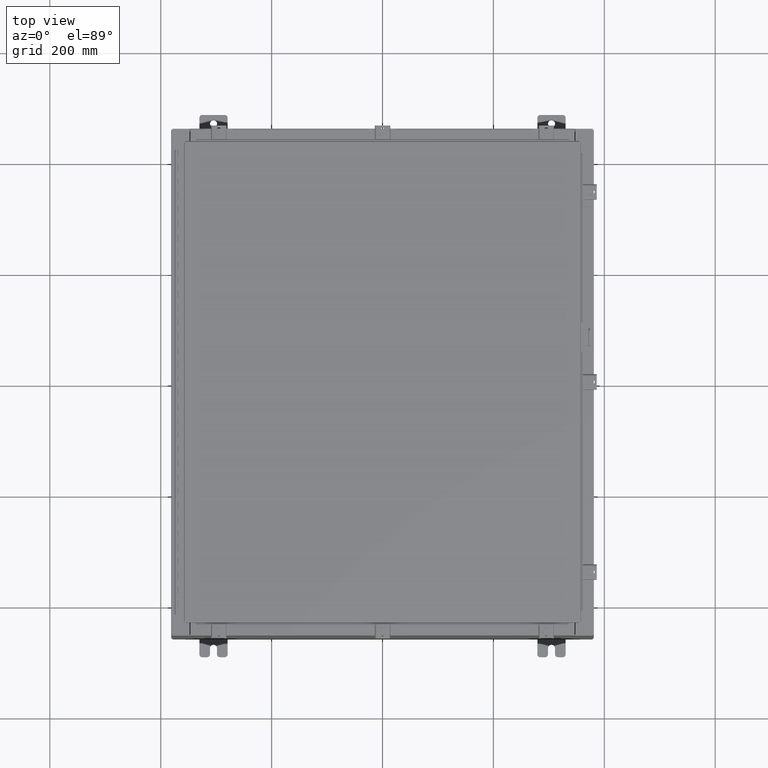
[diagram: clean part render]
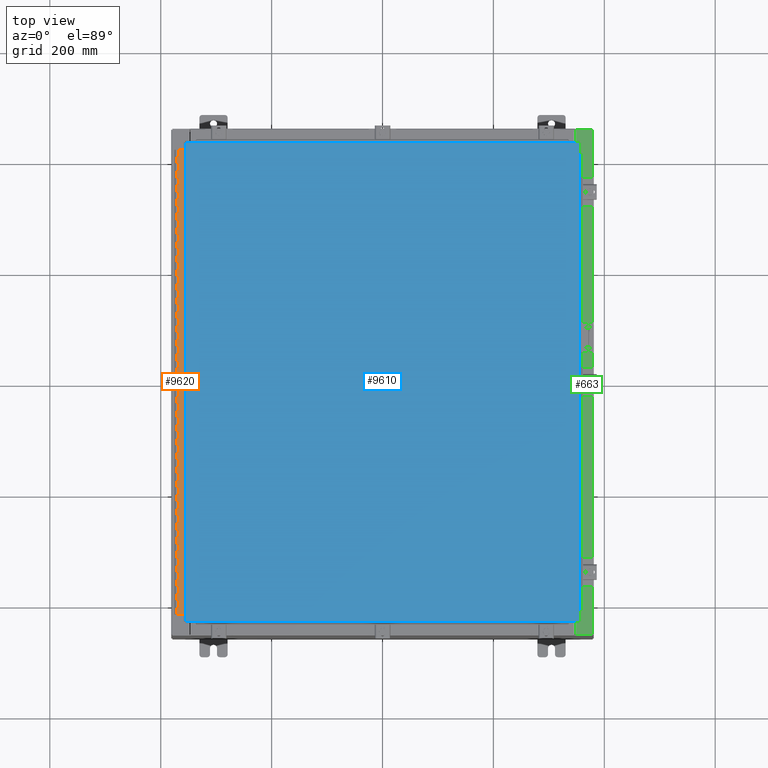
[diagram: same view with three faces highlighted in distinct colors, each labeled with its STEP entity id]
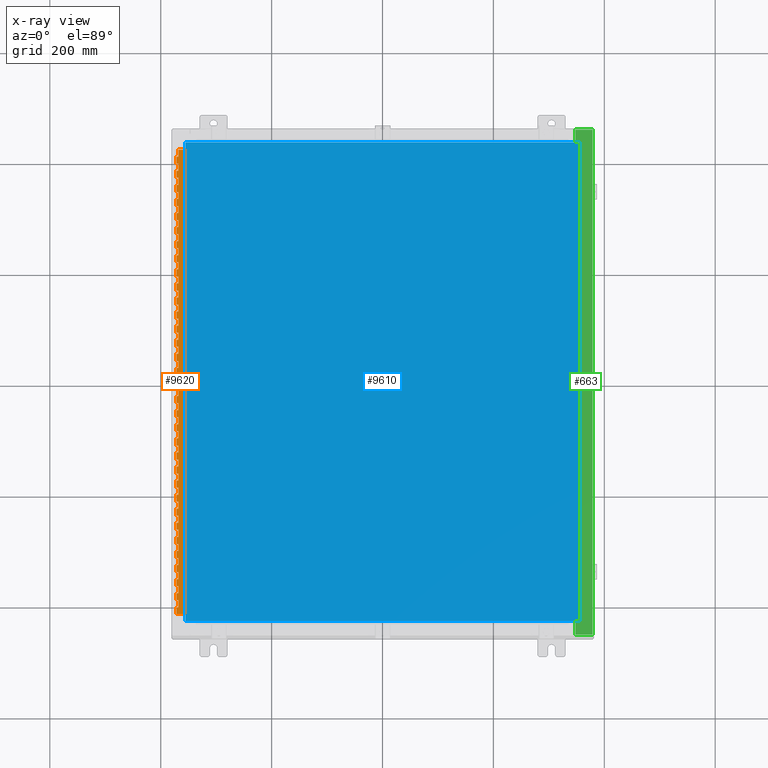
[diagram: x-ray of the same camera — body ghosted, the three highlighted faces saturated]
A machine part, top view with three faces highlighted in distinct colors.
The next image is the same camera in x-ray (body ghosted, the three faces saturated) — at least one of them is partly hidden behind the body in this view.
Their STEP definitions:

[orange] entity #9620 — the highlighted planar face has unit normal (-0, -0, 1).
#16 = CARTESIAN_POINT ( 'NONE',  ( -0.6869999999999982800, 0.5504999999999997700, -11.00000000000000000 ) ) ;
#41 = VERTEX_POINT ( 'NONE', #1127 ) ;
#70 = CARTESIAN_POINT ( 'NONE',  ( -0.6869999999999982800, 0.5504999999999997700, -15.50000000000000000 ) ) ;
#109 = EDGE_CURVE ( 'NONE', #1072, #911, #23386, .T. ) ;
#274 = ORIENTED_EDGE ( 'NONE', *, *, #9390, .F. ) ;
#292 = VERTEX_POINT ( 'NONE', #26943 ) ;
#294 = CARTESIAN_POINT ( 'NONE',  ( -0.6869999999999973900, 0.8004999999999995500, -28.50000000000000000 ) ) ;
#341 = LINE ( 'NONE', #24071, #19102 ) ;
#391 = LINE ( 'NONE', #18637, #25934 ) ;
#552 = LINE ( 'NONE', #20993, #35003 ) ;
#564 = VERTEX_POINT ( 'NONE', #30663 ) ;
#626 = EDGE_CURVE ( 'NONE', #24757, #28374, #7282, .T. ) ;
#715 = LINE ( 'NONE', #28475, #26238 ) ;
#783 = LINE ( 'NONE', #40858, #35218 ) ;
#825 = VECTOR ( 'NONE', #23281, 39.37007874015748100 ) ;
#886 = VECTOR ( 'NONE', #12688, 39.37007874015748100 ) ;
#911 = VERTEX_POINT ( 'NONE', #27325 ) ;
#985 = LINE ( 'NONE', #33436, #16609 ) ;
#1030 = CARTESIAN_POINT ( 'NONE',  ( -0.6869999999999978300, 0.6754999999999996600, -26.00000000000000000 ) ) ;
#1041 = CARTESIAN_POINT ( 'NONE',  ( -0.6869999999999982800, 0.5504999999999997700, -5.500000000000000000 ) ) ;
#1072 = VERTEX_POINT ( 'NONE', #21421 ) ;
#1127 = CARTESIAN_POINT ( 'NONE',  ( -0.6869999999999978300, 0.6754999999999996600, -4.000000000000000000 ) ) ;
#1147 = VECTOR ( 'NONE', #10408, 39.37007874015748100 ) ;
#1183 = CARTESIAN_POINT ( 'NONE',  ( -0.6869999999999982800, 0.5504999999999997700, -1.000000000000000000 ) ) ;
#1192 = CARTESIAN_POINT ( 'NONE',  ( -0.6869999999999982800, 0.5504999999999997700, -2.999999999999999600 ) ) ;
#1198 = ORIENTED_EDGE ( 'NONE', *, *, #26548, .F. ) ;
#1202 = VERTEX_POINT ( 'NONE', #42294 ) ;
#1281 = ORIENTED_EDGE ( 'NONE', *, *, #42926, .F. ) ;
#1286 = EDGE_CURVE ( 'NONE', #39502, #6872, #8776, .T. ) ;
#1290 = LINE ( 'NONE', #11634, #17966 ) ;
#1310 = VERTEX_POINT ( 'NONE', #12490 ) ;
#1332 = VECTOR ( 'NONE', #18461, 39.37007874015748100 ) ;
#1567 = EDGE_CURVE ( 'NONE', #26933, #41636, #32339, .T. ) ;
#1603 = DIRECTION ( 'NONE',  ( 0.0000000000000000000, -0.0000000000000000000, -1.000000000000000000 ) ) ;
#1606 = VERTEX_POINT ( 'NONE', #36554 ) ;
#1653 = CARTESIAN_POINT ( 'NONE',  ( -0.6869999999999982800, 0.5504999999999997700, -25.50000000000000400 ) ) ;
#1659 = EDGE_CURVE ( 'NONE', #14883, #911, #13537, .T. ) ;
#1677 = LINE ( 'NONE', #38093, #36117 ) ;
#1684 = CARTESIAN_POINT ( 'NONE',  ( -0.6869999999999973900, 0.8004999999999995500, -13.50000000000000000 ) ) ;
#1702 = VERTEX_POINT ( 'NONE', #40959 ) ;
#1708 = CARTESIAN_POINT ( 'NONE',  ( -0.6869999999999978300, 0.6754999999999996600, -19.50000000000000000 ) ) ;
#1710 = VERTEX_POINT ( 'NONE', #20927 ) ;
#1988 = CARTESIAN_POINT ( 'NONE',  ( -0.6869999999999982800, 0.5504999999999997700, -18.50000000000000000 ) ) ;
#2041 = VERTEX_POINT ( 'NONE', #42352 ) ;
#2064 = CARTESIAN_POINT ( 'NONE',  ( -0.6869999999999982800, 0.5504999999999997700, -17.99999999999999600 ) ) ;
#2128 = CARTESIAN_POINT ( 'NONE',  ( -0.6869999999999982800, 0.5504999999999997700, -9.000000000000000000 ) ) ;
#2130 = VERTEX_POINT ( 'NONE', #29426 ) ;
#2148 = CARTESIAN_POINT ( 'NONE',  ( -0.6869999999999982800, 0.5504999999999997700, -28.00000000000000000 ) ) ;
#2155 = CARTESIAN_POINT ( 'NONE',  ( -0.6869999999999973900, 0.8004999999999995500, -31.50000000000000400 ) ) ;
#2207 = EDGE_CURVE ( 'NONE', #41570, #11758, #19217, .T. ) ;
#2252 = EDGE_CURVE ( 'NONE', #6990, #14848, #34902, .T. ) ;
#2326 = VERTEX_POINT ( 'NONE', #34492 ) ;
#2350 = CARTESIAN_POINT ( 'NONE',  ( -0.6869999999999982800, 0.5504999999999997700, -4.500000000000000000 ) ) ;
#2353 = ORIENTED_EDGE ( 'NONE', *, *, #41825, .T. ) ;
#2387 = CARTESIAN_POINT ( 'NONE',  ( -0.6869999999999978300, 0.6754999999999996600, -9.000000000000000000 ) ) ;
#2479 = VECTOR ( 'NONE', #37129, 39.37007874015748100 ) ;
#2515 = LINE ( 'NONE', #37749, #27030 ) ;
#2524 = VECTOR ( 'NONE', #26508, 39.37007874015748100 ) ;
#2559 = ORIENTED_EDGE ( 'NONE', *, *, #11579, .F. ) ;
#2570 = LINE ( 'NONE', #18446, #28138 ) ;
#2649 = CARTESIAN_POINT ( 'NONE',  ( -0.6869999999999978300, 0.6754999999999996600, -33.00000000000000000 ) ) ;
#2681 = LINE ( 'NONE', #38490, #10523 ) ;
#2733 = ORIENTED_EDGE ( 'NONE', *, *, #36116, .T. ) ;
#2754 = DIRECTION ( 'NONE',  ( 3.389037039080723100E-015, 1.000000000000000000, -0.0000000000000000000 ) ) ;
#2802 = VERTEX_POINT ( 'NONE', #13549 ) ;
#2969 = VECTOR ( 'NONE', #8410, 39.37007874015748100 ) ;
#2971 = VERTEX_POINT ( 'NONE', #24544 ) ;
#2973 = CARTESIAN_POINT ( 'NONE',  ( -0.6869999999999978300, 0.6754999999999996600, -24.50000000000000000 ) ) ;
#2991 = DIRECTION ( 'NONE',  ( -3.389037039080723100E-015, -1.000000000000000000, 0.0000000000000000000 ) ) ;
#2998 = VECTOR ( 'NONE', #38658, 39.37007874015748100 ) ;
#3048 = EDGE_CURVE ( 'NONE', #6465, #13038, #34912, .T. ) ;
#3050 = CARTESIAN_POINT ( 'NONE',  ( -0.6869999999999978300, 0.6754999999999996600, -19.00000000000000000 ) ) ;
#3079 = VERTEX_POINT ( 'NONE', #1708 ) ;
#3135 = VECTOR ( 'NONE', #31961, 39.37007874015748100 ) ;
#3226 = LINE ( 'NONE', #10660, #37691 ) ;
#3233 = DIRECTION ( 'NONE',  ( -3.389037039080723100E-015, -1.000000000000000000, 0.0000000000000000000 ) ) ;
#3245 = EDGE_CURVE ( 'NONE', #34421, #38100, #41186, .T. ) ;
#3261 = CARTESIAN_POINT ( 'NONE',  ( -0.6869999999999982800, 0.5504999999999997700, -28.50000000000000000 ) ) ;
#3328 = CARTESIAN_POINT ( 'NONE',  ( -0.6869999999999978300, 0.6754999999999996600, -33.00000000000000000 ) ) ;
#3348 = DIRECTION ( 'NONE',  ( 3.389037039080723100E-015, 1.000000000000000000, -0.0000000000000000000 ) ) ;
#3368 = DIRECTION ( 'NONE',  ( 0.0000000000000000000, 0.0000000000000000000, 1.000000000000000000 ) ) ;
#3421 = CARTESIAN_POINT ( 'NONE',  ( -0.6869999999999978300, 0.6754999999999996600, -5.000000000000000000 ) ) ;
#3567 = DIRECTION ( 'NONE',  ( 0.0000000000000000000, -0.0000000000000000000, -1.000000000000000000 ) ) ;
#3586 = VERTEX_POINT ( 'NONE', #15611 ) ;
#3607 = DIRECTION ( 'NONE',  ( 3.389037039080723100E-015, 1.000000000000000000, -0.0000000000000000000 ) ) ;
#3624 = ORIENTED_EDGE ( 'NONE', *, *, #13706, .F. ) ;
#3639 = EDGE_CURVE ( 'NONE', #1710, #30384, #10831, .T. ) ;
#3640 = VERTEX_POINT ( 'NONE', #18459 ) ;
#3651 = EDGE_CURVE ( 'NONE', #28612, #31578, #27514, .T. ) ;
#3682 = LINE ( 'NONE', #2155, #20342 ) ;
#3715 = LINE ( 'NONE', #12806, #20393 ) ;
#3738 = ORIENTED_EDGE ( 'NONE', *, *, #5182, .T. ) ;
#3761 = EDGE_CURVE ( 'NONE', #4364, #21534, #8739, .T. ) ;
#3787 = ORIENTED_EDGE ( 'NONE', *, *, #8049, .F. ) ;
#3816 = LINE ( 'NONE', #34006, #37204 ) ;
#3821 = ORIENTED_EDGE ( 'NONE', *, *, #23330, .F. ) ;
#3832 = DIRECTION ( 'NONE',  ( -3.389037039080723100E-015, -1.000000000000000000, 0.0000000000000000000 ) ) ;
#3834 = ORIENTED_EDGE ( 'NONE', *, *, #31233, .F. ) ;
#3858 = VECTOR ( 'NONE', #32526, 39.37007874015748100 ) ;
#3866 = CARTESIAN_POINT ( 'NONE',  ( -0.6869999999999982800, 0.5504999999999997700, -23.99999999999999600 ) ) ;
#3872 = ORIENTED_EDGE ( 'NONE', *, *, #32819, .F. ) ;
#3936 = CARTESIAN_POINT ( 'NONE',  ( -0.6869999999999973900, 0.8004999999999995500, -16.00000000000000000 ) ) ;
#3965 = VECTOR ( 'NONE', #3567, 39.37007874015748100 ) ;
#3979 = VECTOR ( 'NONE', #14122, 39.37007874015748100 ) ;
#4085 = CARTESIAN_POINT ( 'NONE',  ( -0.6869999999999978300, 0.6754999999999996600, -33.00000000000000000 ) ) ;
#4193 = VERTEX_POINT ( 'NONE', #8692 ) ;
#4207 = LINE ( 'NONE', #11107, #17734 ) ;
#4239 = VECTOR ( 'NONE', #14483, 39.37007874015748100 ) ;
#4244 = LINE ( 'NONE', #29088, #17772 ) ;
#4288 = VECTOR ( 'NONE', #32269, 39.37007874015748100 ) ;
#4343 = CARTESIAN_POINT ( 'NONE',  ( -0.6869999999999978300, 0.6754999999999996600, -33.00000000000000000 ) ) ;
#4364 = VERTEX_POINT ( 'NONE', #15050 ) ;
#4365 = EDGE_CURVE ( 'NONE', #15490, #5806, #26909, .T. ) ;
#4395 = DIRECTION ( 'NONE',  ( 0.0000000000000000000, -0.0000000000000000000, -1.000000000000000000 ) ) ;
#4444 = VERTEX_POINT ( 'NONE', #39483 ) ;
#4506 = VERTEX_POINT ( 'NONE', #19640 ) ;
#4518 = ORIENTED_EDGE ( 'NONE', *, *, #41460, .F. ) ;
#4666 = EDGE_CURVE ( 'NONE', #39544, #33403, #36297, .T. ) ;
#4685 = VECTOR ( 'NONE', #41875, 39.37007874015748100 ) ;
#4753 = VECTOR ( 'NONE', #26170, 39.37007874015748100 ) ;
#4761 = VECTOR ( 'NONE', #42223, 39.37007874015748100 ) ;
#4790 = DIRECTION ( 'NONE',  ( -3.389037039080723100E-015, -1.000000000000000000, 0.0000000000000000000 ) ) ;
#4792 = EDGE_CURVE ( 'NONE', #29432, #30135, #22193, .T. ) ;
#4825 = CARTESIAN_POINT ( 'NONE',  ( -0.6869999999999978300, 0.6754999999999996600, -30.50000000000000400 ) ) ;
#4895 = DIRECTION ( 'NONE',  ( 3.389037039080723100E-015, 1.000000000000000000, -0.0000000000000000000 ) ) ;
#4945 = CARTESIAN_POINT ( 'NONE',  ( -0.6869999999999978300, 0.6754999999999996600, -33.00000000000000000 ) ) ;
#4956 = ORIENTED_EDGE ( 'NONE', *, *, #14948, .F. ) ;
#5134 = VECTOR ( 'NONE', #43166, 39.37007874015748100 ) ;
#5172 = VERTEX_POINT ( 'NONE', #14251 ) ;
#5182 = EDGE_CURVE ( 'NONE', #32330, #28250, #783, .T. ) ;
#5345 = DIRECTION ( 'NONE',  ( 0.0000000000000000000, -0.0000000000000000000, -1.000000000000000000 ) ) ;
#5373 = DIRECTION ( 'NONE',  ( 0.0000000000000000000, -0.0000000000000000000, -1.000000000000000000 ) ) ;
#5442 = DIRECTION ( 'NONE',  ( 0.0000000000000000000, 0.0000000000000000000, 1.000000000000000000 ) ) ;
#5470 = CARTESIAN_POINT ( 'NONE',  ( -0.6869999999999978300, 0.6754999999999996600, -33.00000000000000000 ) ) ;
#5497 = LINE ( 'NONE', #28941, #39977 ) ;
#5593 = DIRECTION ( 'NONE',  ( 3.389037039080723100E-015, 1.000000000000000000, -0.0000000000000000000 ) ) ;
#5639 = DIRECTION ( 'NONE',  ( -3.389037039080723100E-015, -1.000000000000000000, 0.0000000000000000000 ) ) ;
#5645 = CARTESIAN_POINT ( 'NONE',  ( -0.6869999999999982800, 0.5504999999999997700, -5.500000000000000000 ) ) ;
#5703 = EDGE_CURVE ( 'NONE', #19300, #18250, #35188, .T. ) ;
#5790 = VECTOR ( 'NONE', #34408, 39.37007874015748100 ) ;
#5806 = VERTEX_POINT ( 'NONE', #17114 ) ;
#5813 = CARTESIAN_POINT ( 'NONE',  ( -0.6869999999999973900, 0.8004999999999995500, -6.499999999999999100 ) ) ;
#5835 = CARTESIAN_POINT ( 'NONE',  ( -0.6869999999999982800, 0.5504999999999997700, -10.50000000000000000 ) ) ;
#6012 = ORIENTED_EDGE ( 'NONE', *, *, #42111, .T. ) ;
#6034 = ORIENTED_EDGE ( 'NONE', *, *, #18288, .T. ) ;
#6049 = EDGE_CURVE ( 'NONE', #11820, #27457, #13749, .T. ) ;
#6055 = DIRECTION ( 'NONE',  ( 0.0000000000000000000, 0.0000000000000000000, 1.000000000000000000 ) ) ;
#6073 = LINE ( 'NONE', #11181, #30599 ) ;
#6156 = ORIENTED_EDGE ( 'NONE', *, *, #18613, .F. ) ;
#6237 = CARTESIAN_POINT ( 'NONE',  ( -0.6869999999999982800, 0.5504999999999997700, -13.50000000000000000 ) ) ;
#6266 = LINE ( 'NONE', #41627, #33950 ) ;
#6299 = ORIENTED_EDGE ( 'NONE', *, *, #8792, .T. ) ;
#6304 = VECTOR ( 'NONE', #17792, 39.37007874015748100 ) ;
#6402 = CARTESIAN_POINT ( 'NONE',  ( -0.6869999999999982800, 0.5504999999999997700, -32.50000000000000000 ) ) ;
#6465 = VERTEX_POINT ( 'NONE', #8948 ) ;
#6533 = CARTESIAN_POINT ( 'NONE',  ( -0.6869999999999982800, 0.5504999999999997700, -16.50000000000000000 ) ) ;
#6548 = DIRECTION ( 'NONE',  ( 0.0000000000000000000, -0.0000000000000000000, -1.000000000000000000 ) ) ;
#6589 = LINE ( 'NONE', #21944, #24350 ) ;
#6654 = LINE ( 'NONE', #7001, #41166 ) ;
#6724 = VERTEX_POINT ( 'NONE', #7963 ) ;
#6793 = EDGE_CURVE ( 'NONE', #7597, #26493, #13155, .T. ) ;
#6813 = CARTESIAN_POINT ( 'NONE',  ( -0.6869999999999978300, 0.6754999999999996600, -6.499999999999999100 ) ) ;
#6835 = VERTEX_POINT ( 'NONE', #32112 ) ;
#6872 = VERTEX_POINT ( 'NONE', #23080 ) ;
#6880 = VERTEX_POINT ( 'NONE', #19582 ) ;
#6901 = CARTESIAN_POINT ( 'NONE',  ( -0.6869999999999978300, 0.6754999999999996600, -29.50000000000000000 ) ) ;
#6958 = ORIENTED_EDGE ( 'NONE', *, *, #27760, .F. ) ;
#6973 = VERTEX_POINT ( 'NONE', #2350 ) ;
#6990 = VERTEX_POINT ( 'NONE', #2064 ) ;
#7001 = CARTESIAN_POINT ( 'NONE',  ( -0.6869999999999978300, 0.6754999999999996600, -33.00000000000000000 ) ) ;
#7134 = EDGE_CURVE ( 'NONE', #12285, #41, #25135, .T. ) ;
#7178 = VECTOR ( 'NONE', #40213, 39.37007874015748100 ) ;
#7203 = ORIENTED_EDGE ( 'NONE', *, *, #19638, .T. ) ;
#7282 = LINE ( 'NONE', #18393, #8329 ) ;
#7309 = VECTOR ( 'NONE', #16603, 39.37007874015748100 ) ;
#7341 = LINE ( 'NONE', #21533, #37771 ) ;
#7437 = LINE ( 'NONE', #12772, #15248 ) ;
#7455 = CARTESIAN_POINT ( 'NONE',  ( -0.6869999999999973900, 0.8004999999999995500, -23.99999999999999600 ) ) ;
#7476 = VERTEX_POINT ( 'NONE', #29389 ) ;
#7535 = VECTOR ( 'NONE', #26302, 39.37007874015748100 ) ;
#7597 = VERTEX_POINT ( 'NONE', #38371 ) ;
#7619 = ORIENTED_EDGE ( 'NONE', *, *, #33699, .F. ) ;
#7688 = DIRECTION ( 'NONE',  ( 0.0000000000000000000, 0.0000000000000000000, 1.000000000000000000 ) ) ;
#7745 = CARTESIAN_POINT ( 'NONE',  ( -0.6869999999999982800, 0.5504999999999997700, -1.499999999999999800 ) ) ;
#7807 = ORIENTED_EDGE ( 'NONE', *, *, #18545, .F. ) ;
#7814 = LINE ( 'NONE', #18037, #42276 ) ;
#7820 = VERTEX_POINT ( 'NONE', #14149 ) ;
#7899 = VERTEX_POINT ( 'NONE', #15082 ) ;
#7963 = CARTESIAN_POINT ( 'NONE',  ( -0.6869999999999982800, 0.5504999999999997700, -21.00000000000000000 ) ) ;
#7969 = VECTOR ( 'NONE', #29498, 39.37007874015748100 ) ;
#7984 = DIRECTION ( 'NONE',  ( 0.0000000000000000000, -0.0000000000000000000, -1.000000000000000000 ) ) ;
#8013 = DIRECTION ( 'NONE',  ( 3.389037039080723100E-015, 1.000000000000000000, -0.0000000000000000000 ) ) ;
#8014 = ORIENTED_EDGE ( 'NONE', *, *, #36700, .F. ) ;
#8046 = EDGE_CURVE ( 'NONE', #41629, #40577, #27147, .T. ) ;
#8049 = EDGE_CURVE ( 'NONE', #25805, #10691, #552, .T. ) ;
#8114 = VECTOR ( 'NONE', #34987, 39.37007874015748100 ) ;
#8124 = DIRECTION ( 'NONE',  ( 0.0000000000000000000, 0.0000000000000000000, 1.000000000000000000 ) ) ;
#8159 = EDGE_CURVE ( 'NONE', #25308, #31539, #7341, .T. ) ;
#8175 = VECTOR ( 'NONE', #27384, 39.37007874015748100 ) ;
#8185 = VERTEX_POINT ( 'NONE', #40936 ) ;
#8226 = LINE ( 'NONE', #25341, #33814 ) ;
#8235 = LINE ( 'NONE', #22541, #7178 ) ;
#8276 = VECTOR ( 'NONE', #3348, 39.37007874015748100 ) ;
#8314 = DIRECTION ( 'NONE',  ( 0.0000000000000000000, 0.0000000000000000000, 1.000000000000000000 ) ) ;
#8329 = VECTOR ( 'NONE', #32537, 39.37007874015748100 ) ;
#8410 = DIRECTION ( 'NONE',  ( -3.389037039080723100E-015, -1.000000000000000000, 0.0000000000000000000 ) ) ;
#8441 = EDGE_CURVE ( 'NONE', #292, #4506, #13728, .T. ) ;
#8481 = EDGE_CURVE ( 'NONE', #34421, #24828, #27271, .T. ) ;
#8558 = VERTEX_POINT ( 'NONE', #19793 ) ;
#8571 = VERTEX_POINT ( 'NONE', #17319 ) ;
#8574 = CARTESIAN_POINT ( 'NONE',  ( -0.6869999999999982800, 0.5504999999999997700, -23.50000000000000000 ) ) ;
#8582 = CARTESIAN_POINT ( 'NONE',  ( -0.6869999999999982800, 0.5504999999999997700, -16.00000000000000000 ) ) ;
#8589 = CARTESIAN_POINT ( 'NONE',  ( -0.6869999999999973900, 0.8004999999999995500, -17.50000000000000000 ) ) ;
#8692 = CARTESIAN_POINT ( 'NONE',  ( -0.6869999999999982800, 0.5504999999999997700, -28.50000000000000000 ) ) ;
#8739 = LINE ( 'NONE', #19326, #41146 ) ;
#8776 = LINE ( 'NONE', #15000, #16180 ) ;
#8792 = EDGE_CURVE ( 'NONE', #6835, #28374, #17879, .T. ) ;
#8833 = ORIENTED_EDGE ( 'NONE', *, *, #9640, .T. ) ;
#8846 = DIRECTION ( 'NONE',  ( 0.0000000000000000000, 0.0000000000000000000, 1.000000000000000000 ) ) ;
#8848 = EDGE_CURVE ( 'NONE', #5806, #41, #14769, .T. ) ;
#8863 = CARTESIAN_POINT ( 'NONE',  ( -0.6869999999999982800, 0.5504999999999997700, -14.99999999999999800 ) ) ;
#8876 = CARTESIAN_POINT ( 'NONE',  ( -0.6869999999999973900, 0.8004999999999995500, -19.00000000000000000 ) ) ;
#8948 = CARTESIAN_POINT ( 'NONE',  ( -0.6869999999999978300, 0.6754999999999996600, -18.50000000000000000 ) ) ;
#8958 = CARTESIAN_POINT ( 'NONE',  ( -0.6869999999999973900, 0.8004999999999995500, -6.000000000000000900 ) ) ;
#8972 = VERTEX_POINT ( 'NONE', #16 ) ;
#9030 = CARTESIAN_POINT ( 'NONE',  ( -0.6869999999999978300, 0.6754999999999996600, -6.000000000000000900 ) ) ;
#9206 = LINE ( 'NONE', #34134, #8175 ) ;
#9237 = CARTESIAN_POINT ( 'NONE',  ( -0.6869999999999973900, 0.8004999999999995500, -20.50000000000000400 ) ) ;
#9268 = DIRECTION ( 'NONE',  ( 0.0000000000000000000, -0.0000000000000000000, -1.000000000000000000 ) ) ;
#9366 = EDGE_CURVE ( 'NONE', #32330, #37586, #38217, .T. ) ;
#9389 = CARTESIAN_POINT ( 'NONE',  ( -0.6869999999999973900, 0.8004999999999995500, -24.50000000000000000 ) ) ;
#9390 = EDGE_CURVE ( 'NONE', #28752, #23718, #2681, .T. ) ;
#9414 = EDGE_CURVE ( 'NONE', #34976, #18575, #19374, .T. ) ;
#9486 = EDGE_CURVE ( 'NONE', #292, #41468, #34020, .T. ) ;
#9583 = DIRECTION ( 'NONE',  ( 1.000000000000000000, -3.369016658928398200E-015, 0.0000000000000000000 ) ) ;
#9620 = ADVANCED_FACE ( 'NONE', ( #35555 ), #23006, .T. ) ;
#9639 = LINE ( 'NONE', #26956, #25299 ) ;
#9640 = EDGE_CURVE ( 'NONE', #8185, #2041, #26649, .T. ) ;
#9668 = VECTOR ( 'NONE', #7984, 39.37007874015748100 ) ;
#9676 = CARTESIAN_POINT ( 'NONE',  ( -0.6869999999999978300, 0.6754999999999996600, -33.00000000000000000 ) ) ;
#9701 = VECTOR ( 'NONE', #25028, 39.37007874015748100 ) ;
#9706 = ORIENTED_EDGE ( 'NONE', *, *, #24502, .F. ) ;
#9740 = LINE ( 'NONE', #16062, #886 ) ;
#9759 = DIRECTION ( 'NONE',  ( 0.0000000000000000000, 0.0000000000000000000, 1.000000000000000000 ) ) ;
#9798 = EDGE_CURVE ( 'NONE', #6724, #31190, #3715, .T. ) ;
#9943 = CARTESIAN_POINT ( 'NONE',  ( -0.6869999999999978300, 0.6754999999999996600, -31.50000000000000400 ) ) ;
#10031 = VECTOR ( 'NONE', #14753, 39.37007874015748100 ) ;
#10075 = LINE ( 'NONE', #16499, #17908 ) ;
#10095 = CARTESIAN_POINT ( 'NONE',  ( -0.6869999999999982800, 0.5504999999999997700, -8.500000000000000000 ) ) ;
#10099 = ORIENTED_EDGE ( 'NONE', *, *, #21597, .T. ) ;
#10185 = LINE ( 'NONE', #35241, #1332 ) ;
#10223 = ORIENTED_EDGE ( 'NONE', *, *, #8848, .F. ) ;
#10242 = EDGE_CURVE ( 'NONE', #35284, #21786, #3682, .T. ) ;
#10295 = LINE ( 'NONE', #1041, #26986 ) ;
#10347 = DIRECTION ( 'NONE',  ( 3.389037039080723100E-015, 1.000000000000000000, -0.0000000000000000000 ) ) ;
#10350 = CARTESIAN_POINT ( 'NONE',  ( -0.6869999999999978300, 0.6754999999999996600, -23.00000000000000000 ) ) ;
#10366 = DIRECTION ( 'NONE',  ( 0.0000000000000000000, 0.0000000000000000000, 1.000000000000000000 ) ) ;
#10403 = LINE ( 'NONE', #21967, #18225 ) ;
#10408 = DIRECTION ( 'NONE',  ( 0.0000000000000000000, -0.0000000000000000000, -1.000000000000000000 ) ) ;
#10419 = ORIENTED_EDGE ( 'NONE', *, *, #14840, .F. ) ;
#10448 = CARTESIAN_POINT ( 'NONE',  ( -0.6869999999999978300, 0.6754999999999996600, -24.99999999999999600 ) ) ;
#10523 = VECTOR ( 'NONE', #31756, 39.37007874015748100 ) ;
#10582 = CARTESIAN_POINT ( 'NONE',  ( -0.6869999999999982800, 0.5504999999999997700, -19.50000000000000000 ) ) ;
#10659 = ORIENTED_EDGE ( 'NONE', *, *, #25905, .F. ) ;
#10660 = CARTESIAN_POINT ( 'NONE',  ( -0.6869999999999973900, 0.8004999999999995500, -28.99999999999999600 ) ) ;
#10691 = VERTEX_POINT ( 'NONE', #19814 ) ;
#10734 = ORIENTED_EDGE ( 'NONE', *, *, #30580, .F. ) ;
#10744 = ORIENTED_EDGE ( 'NONE', *, *, #38285, .F. ) ;
#10745 = VECTOR ( 'NONE', #41881, 39.37007874015748100 ) ;
#10751 = CARTESIAN_POINT ( 'NONE',  ( -0.6869999999999982800, 0.5504999999999997700, -17.50000000000000000 ) ) ;
#10807 = VECTOR ( 'NONE', #11738, 39.37007874015748100 ) ;
#10831 = LINE ( 'NONE', #25307, #2998 ) ;
#10860 = ORIENTED_EDGE ( 'NONE', *, *, #36307, .F. ) ;
#10900 = VERTEX_POINT ( 'NONE', #38398 ) ;
#10907 = DIRECTION ( 'NONE',  ( 0.0000000000000000000, 0.0000000000000000000, 1.000000000000000000 ) ) ;
#10980 = ORIENTED_EDGE ( 'NONE', *, *, #32810, .F. ) ;
#11022 = VERTEX_POINT ( 'NONE', #14521 ) ;
#11042 = EDGE_CURVE ( 'NONE', #24828, #28612, #18699, .T. ) ;
#11058 = LINE ( 'NONE', #27015, #1147 ) ;
#11107 = CARTESIAN_POINT ( 'NONE',  ( -0.6869999999999973900, 0.8004999999999995500, -27.50000000000000000 ) ) ;
#11181 = CARTESIAN_POINT ( 'NONE',  ( -0.6869999999999978300, 0.6754999999999996600, -33.00000000000000000 ) ) ;
#11269 = EDGE_CURVE ( 'NONE', #1702, #1710, #4207, .T. ) ;
#11340 = CARTESIAN_POINT ( 'NONE',  ( -0.6869999999999978300, 0.6754999999999996600, -33.00000000000000000 ) ) ;
#11401 = ORIENTED_EDGE ( 'NONE', *, *, #626, .F. ) ;
#11453 = VERTEX_POINT ( 'NONE', #3050 ) ;
#11481 = CARTESIAN_POINT ( 'NONE',  ( -0.6869999999999982800, 0.5504999999999997700, -22.00000000000000000 ) ) ;
#11500 = CARTESIAN_POINT ( 'NONE',  ( -0.6869999999999982800, 0.5504999999999997700, -7.499999999999999100 ) ) ;
#11526 = CARTESIAN_POINT ( 'NONE',  ( -0.6869999999999982800, 0.5504999999999997700, -15.50000000000000000 ) ) ;
#11549 = EDGE_CURVE ( 'NONE', #39544, #2130, #2570, .T. ) ;
#11579 = EDGE_CURVE ( 'NONE', #14883, #26997, #10403, .T. ) ;
#11634 = CARTESIAN_POINT ( 'NONE',  ( -0.6869999999999973900, 0.8004999999999995500, -4.500000000000000000 ) ) ;
#11645 = VECTOR ( 'NONE', #28191, 39.37007874015748100 ) ;
#11738 = DIRECTION ( 'NONE',  ( 0.0000000000000000000, -0.0000000000000000000, -1.000000000000000000 ) ) ;
#11758 = VERTEX_POINT ( 'NONE', #30832 ) ;
#11764 = CARTESIAN_POINT ( 'NONE',  ( -0.6869999999999973900, 0.8004999999999995500, -19.50000000000000000 ) ) ;
#11767 = CARTESIAN_POINT ( 'NONE',  ( -0.6869999999999982800, 0.5504999999999997700, -9.500000000000000000 ) ) ;
#11820 = VERTEX_POINT ( 'NONE', #34484 ) ;
#11848 = VERTEX_POINT ( 'NONE', #37990 ) ;
#11930 = LINE ( 'NONE', #36479, #27576 ) ;
#11948 = DIRECTION ( 'NONE',  ( 0.0000000000000000000, 0.0000000000000000000, 1.000000000000000000 ) ) ;
#12008 = LINE ( 'NONE', #5835, #3135 ) ;
#12044 = CARTESIAN_POINT ( 'NONE',  ( -0.6869999999999978300, 0.6754999999999996600, -2.999999999999999600 ) ) ;
#12190 = VECTOR ( 'NONE', #41668, 39.37007874015748100 ) ;
#12205 = DIRECTION ( 'NONE',  ( 3.389037039080723100E-015, 1.000000000000000000, -0.0000000000000000000 ) ) ;
#12262 = ORIENTED_EDGE ( 'NONE', *, *, #28732, .F. ) ;
#12285 = VERTEX_POINT ( 'NONE', #32795 ) ;
#12327 = VECTOR ( 'NONE', #5593, 39.37007874015748100 ) ;
#12329 = CARTESIAN_POINT ( 'NONE',  ( -0.6869999999999998300, 0.07549999999999991400, 0.0000000000000000000 ) ) ;
#12387 = ORIENTED_EDGE ( 'NONE', *, *, #41323, .T. ) ;
#12490 = CARTESIAN_POINT ( 'NONE',  ( -0.6869999999999978300, 0.6754999999999996600, -12.99999999999999800 ) ) ;
#12598 = LINE ( 'NONE', #31009, #20434 ) ;
#12612 = EDGE_CURVE ( 'NONE', #37605, #15508, #8235, .T. ) ;
#12677 = EDGE_CURVE ( 'NONE', #11022, #26933, #31716, .T. ) ;
#12688 = DIRECTION ( 'NONE',  ( -3.389037039080723100E-015, -1.000000000000000000, 0.0000000000000000000 ) ) ;
#12752 = ORIENTED_EDGE ( 'NONE', *, *, #38966, .F. ) ;
#12772 = CARTESIAN_POINT ( 'NONE',  ( -0.6869999999999978300, 0.6754999999999996600, -33.00000000000000000 ) ) ;
#12806 = CARTESIAN_POINT ( 'NONE',  ( -0.6869999999999973900, 0.8004999999999995500, -21.00000000000000000 ) ) ;
#12812 = LINE ( 'NONE', #21788, #3979 ) ;
#12814 = CARTESIAN_POINT ( 'NONE',  ( -0.6869999999999982800, 0.5504999999999997700, -28.99999999999999600 ) ) ;
#12924 = DIRECTION ( 'NONE',  ( -3.389037039080723100E-015, -1.000000000000000000, 0.0000000000000000000 ) ) ;
#12946 = CARTESIAN_POINT ( 'NONE',  ( -0.6870000000000022800, -0.6245000000000003900, -33.00000000000000000 ) ) ;
#12967 = VECTOR ( 'NONE', #41859, 39.37007874015748100 ) ;
#13038 = VERTEX_POINT ( 'NONE', #32809 ) ;
#13085 = LINE ( 'NONE', #35090, #29774 ) ;
#13088 = CARTESIAN_POINT ( 'NONE',  ( -0.6869999999999973900, 0.8004999999999995500, -24.99999999999999600 ) ) ;
#13110 = LINE ( 'NONE', #35490, #4288 ) ;
#13126 = DIRECTION ( 'NONE',  ( -3.389037039080723100E-015, -1.000000000000000000, 0.0000000000000000000 ) ) ;
#13155 = LINE ( 'NONE', #40809, #21000 ) ;
#13206 = CARTESIAN_POINT ( 'NONE',  ( -0.6869999999999978300, 0.6754999999999996600, -3.500000000000000000 ) ) ;
#13231 = ORIENTED_EDGE ( 'NONE', *, *, #36133, .T. ) ;
#13238 = CARTESIAN_POINT ( 'NONE',  ( -0.6869999999999973900, 0.8004999999999995500, -29.99999999999999600 ) ) ;
#13327 = LINE ( 'NONE', #5813, #38954 ) ;
#13363 = CARTESIAN_POINT ( 'NONE',  ( -0.6869999999999982800, 0.5504999999999997700, -30.50000000000000400 ) ) ;
#13369 = VECTOR ( 'NONE', #5442, 39.37007874015748100 ) ;
#13392 = ORIENTED_EDGE ( 'NONE', *, *, #26805, .F. ) ;
#13416 = ORIENTED_EDGE ( 'NONE', *, *, #3048, .F. ) ;
#13481 = VERTEX_POINT ( 'NONE', #42129 ) ;
#13507 = CARTESIAN_POINT ( 'NONE',  ( -0.6869999999999982800, 0.5504999999999997700, -14.49999999999999800 ) ) ;
#13537 = LINE ( 'NONE', #27315, #21368 ) ;
#13549 = CARTESIAN_POINT ( 'NONE',  ( -0.6869999999999978300, 0.6754999999999996600, -22.00000000000000000 ) ) ;
#13685 = CARTESIAN_POINT ( 'NONE',  ( -0.6869999999999982800, 0.5504999999999997700, -12.49999999999999800 ) ) ;
#13706 = EDGE_CURVE ( 'NONE', #6973, #28752, #35254, .T. ) ;
#13728 = LINE ( 'NONE', #37778, #11645 ) ;
#13749 = LINE ( 'NONE', #13685, #3858 ) ;
#13772 = CARTESIAN_POINT ( 'NONE',  ( -0.6869999999999973900, 0.8004999999999995500, -1.000000000000000000 ) ) ;
#13802 = VECTOR ( 'NONE', #19294, 39.37007874015748100 ) ;
#13960 = VECTOR ( 'NONE', #2991, 39.37007874015748100 ) ;
#14008 = LINE ( 'NONE', #6402, #5134 ) ;
#14017 = EDGE_CURVE ( 'NONE', #18464, #6990, #32627, .T. ) ;
#14060 = CARTESIAN_POINT ( 'NONE',  ( -0.6869999999999978300, 0.6754999999999996600, -33.00000000000000000 ) ) ;
#14122 = DIRECTION ( 'NONE',  ( 0.0000000000000000000, 0.0000000000000000000, 1.000000000000000000 ) ) ;
#14139 = CARTESIAN_POINT ( 'NONE',  ( -0.6869999999999982800, 0.5504999999999997700, -5.000000000000000000 ) ) ;
#14146 = LINE ( 'NONE', #21521, #23000 ) ;
#14149 = CARTESIAN_POINT ( 'NONE',  ( -0.6869999999999982800, 0.5504999999999997700, -24.99999999999999600 ) ) ;
#14150 = DIRECTION ( 'NONE',  ( 0.0000000000000000000, -0.0000000000000000000, -1.000000000000000000 ) ) ;
#14203 = VECTOR ( 'NONE', #32947, 39.37007874015748100 ) ;
#14205 = CARTESIAN_POINT ( 'NONE',  ( -0.6869999999999978300, 0.6754999999999996600, -11.99999999999999800 ) ) ;
#14251 = CARTESIAN_POINT ( 'NONE',  ( -0.6869999999999982800, 0.5504999999999997700, -8.000000000000000000 ) ) ;
#14253 = DIRECTION ( 'NONE',  ( 3.389037039080723100E-015, 1.000000000000000000, -0.0000000000000000000 ) ) ;
#14314 = ORIENTED_EDGE ( 'NONE', *, *, #109, .F. ) ;
#14328 = DIRECTION ( 'NONE',  ( 3.389037039080723100E-015, 1.000000000000000000, -0.0000000000000000000 ) ) ;
#14366 = ORIENTED_EDGE ( 'NONE', *, *, #8481, .F. ) ;
#14383 = VECTOR ( 'NONE', #3233, 39.37007874015748100 ) ;
#14397 = EDGE_LOOP ( 'NONE', ( #40792, #40498, #27074, #10860, #27955, #22214, #41790, #20989, #6034, #34501, #3821, #24875, #3738, #34306, #22405, #32187, #29043, #41255, #29163, #15222, #27444, #10980, #15881, #34270, #41330, #3787, #37442, #26519, #35278, #33219, #10419, #30306, #42604, #37788, #28694, #20157, #17048, #34928, #40915, #28534, #14999, #9706, #20560, #24748, #13231, #27833, #23119, #4956, #2353, #19099, #13392, #6958, #6299, #11401, #28673, #32088, #18486, #41294, #41080, #13416, #6012, #29481, #20716, #15017, #34130, #16755, #37013, #8014, #12387, #12262, #26097, #38356, #7203, #26367, #12752, #3872, #8833, #1281, #18952, #21909, #28365, #6156, #39622, #3834, #25815, #18689, #29025, #14366, #33129, #38128, #26847, #2559, #35998, #14314, #35415, #7807, #2733, #10734, #22713, #1198, #24248, #17997, #21932, #37338, #30771, #21933, #22473, #31668, #25559, #32516, #4518, #7619, #10099, #274, #3624, #21026, #34748, #10223, #22472, #39666, #33262, #27150, #10659, #37924, #14641, #19513, #10744, #30767, #40407, #19604, #37345, #22914, #30016, #34253 ) ) ;
#14398 = CARTESIAN_POINT ( 'NONE',  ( -0.6869999999999973900, 0.8004999999999995500, -28.00000000000000000 ) ) ;
#14409 = EDGE_CURVE ( 'NONE', #12285, #6973, #1290, .T. ) ;
#14436 = CARTESIAN_POINT ( 'NONE',  ( -0.6869999999999982800, 0.5504999999999997700, -26.50000000000000400 ) ) ;
#14483 = DIRECTION ( 'NONE',  ( 3.389037039080723100E-015, 1.000000000000000000, -0.0000000000000000000 ) ) ;
#14521 = CARTESIAN_POINT ( 'NONE',  ( -0.6869999999999978300, 0.6754999999999996600, -15.50000000000000000 ) ) ;
#14557 = CARTESIAN_POINT ( 'NONE',  ( -0.6869999999999982800, 0.5504999999999997700, -4.500000000000000000 ) ) ;
#14560 = VECTOR ( 'NONE', #33547, 39.37007874015748100 ) ;
#14588 = VECTOR ( 'NONE', #14328, 39.37007874015748100 ) ;
#14641 = ORIENTED_EDGE ( 'NONE', *, *, #40621, .T. ) ;
#14712 = CARTESIAN_POINT ( 'NONE',  ( -0.6869999999999978300, 0.6754999999999996600, -33.00000000000000000 ) ) ;
#14744 = DIRECTION ( 'NONE',  ( 0.0000000000000000000, -0.0000000000000000000, -1.000000000000000000 ) ) ;
#14753 = DIRECTION ( 'NONE',  ( 3.389037039080723100E-015, 1.000000000000000000, -0.0000000000000000000 ) ) ;
#14769 = LINE ( 'NONE', #34235, #32490 ) ;
#14840 = EDGE_CURVE ( 'NONE', #30135, #25509, #38859, .T. ) ;
#14848 = VERTEX_POINT ( 'NONE', #24990 ) ;
#14883 = VERTEX_POINT ( 'NONE', #28462 ) ;
#14948 = EDGE_CURVE ( 'NONE', #38869, #41629, #13110, .T. ) ;
#14977 = CARTESIAN_POINT ( 'NONE',  ( -0.6869999999999978300, 0.6754999999999996600, -33.00000000000000000 ) ) ;
#14979 = VERTEX_POINT ( 'NONE', #18965 ) ;
#14999 = ORIENTED_EDGE ( 'NONE', *, *, #33680, .T. ) ;
#15000 = CARTESIAN_POINT ( 'NONE',  ( -0.6869999999999973900, 0.8004999999999995500, -22.50000000000000000 ) ) ;
#15017 = ORIENTED_EDGE ( 'NONE', *, *, #37250, .F. ) ;
#15050 = CARTESIAN_POINT ( 'NONE',  ( -0.6869999999999978300, 0.6754999999999996600, -8.500000000000000000 ) ) ;
#15082 = CARTESIAN_POINT ( 'NONE',  ( -0.6869999999999982800, 0.5504999999999997700, -2.000000000000000000 ) ) ;
#15127 = DIRECTION ( 'NONE',  ( -3.389037039080723100E-015, -1.000000000000000000, 0.0000000000000000000 ) ) ;
#15193 = LINE ( 'NONE', #7455, #6304 ) ;
#15214 = VECTOR ( 'NONE', #19010, 39.37007874015748100 ) ;
#15222 = ORIENTED_EDGE ( 'NONE', *, *, #41316, .F. ) ;
#15248 = VECTOR ( 'NONE', #16156, 39.37007874015748100 ) ;
#15373 = EDGE_CURVE ( 'NONE', #31539, #2971, #15193, .T. ) ;
#15488 = CARTESIAN_POINT ( 'NONE',  ( -0.6869999999999973900, 0.8004999999999995500, -14.49999999999999800 ) ) ;
#15490 = VERTEX_POINT ( 'NONE', #41764 ) ;
#15508 = VERTEX_POINT ( 'NONE', #9030 ) ;
#15609 = LINE ( 'NONE', #41227, #22381 ) ;
#15611 = CARTESIAN_POINT ( 'NONE',  ( -0.6869999999999978300, 0.6754999999999996600, -12.49999999999999800 ) ) ;
#15639 = VECTOR ( 'NONE', #9268, 39.37007874015748100 ) ;
#15781 = CARTESIAN_POINT ( 'NONE',  ( -0.6869999999999978300, 0.6754999999999996600, -2.500000000000000000 ) ) ;
#15856 = DIRECTION ( 'NONE',  ( -3.389037039080723100E-015, -1.000000000000000000, 0.0000000000000000000 ) ) ;
#15875 = EDGE_CURVE ( 'NONE', #14979, #43090, #6266, .T. ) ;
#15881 = ORIENTED_EDGE ( 'NONE', *, *, #3639, .F. ) ;
#15892 = VERTEX_POINT ( 'NONE', #37307 ) ;
#15905 = VECTOR ( 'NONE', #32583, 39.37007874015748100 ) ;
#15939 = EDGE_CURVE ( 'NONE', #26997, #8972, #12008, .T. ) ;
#16062 = CARTESIAN_POINT ( 'NONE',  ( -0.6869999999999973900, 0.8004999999999995500, -8.500000000000000000 ) ) ;
#16071 = EDGE_CURVE ( 'NONE', #38178, #2971, #16681, .T. ) ;
#16073 = LINE ( 'NONE', #28267, #24955 ) ;
#16077 = LINE ( 'NONE', #11340, #32788 ) ;
#16101 = VECTOR ( 'NONE', #36970, 39.37007874015748100 ) ;
#16156 = DIRECTION ( 'NONE',  ( 0.0000000000000000000, 0.0000000000000000000, 1.000000000000000000 ) ) ;
#16158 = EDGE_CURVE ( 'NONE', #18250, #20328, #21375, .T. ) ;
#16180 = VECTOR ( 'NONE', #42427, 39.37007874015748100 ) ;
#16217 = VECTOR ( 'NONE', #18025, 39.37007874015748100 ) ;
#16264 = VECTOR ( 'NONE', #25019, 39.37007874015748100 ) ;
#16355 = CARTESIAN_POINT ( 'NONE',  ( -0.6869999999999978300, 0.6754999999999996600, -21.00000000000000000 ) ) ;
#16397 = VERTEX_POINT ( 'NONE', #1192 ) ;
#16499 = CARTESIAN_POINT ( 'NONE',  ( -0.6869999999999973900, 0.8004999999999995500, -12.49999999999999800 ) ) ;
#16603 = DIRECTION ( 'NONE',  ( 3.389037039080723100E-015, 1.000000000000000000, -0.0000000000000000000 ) ) ;
#16608 = CARTESIAN_POINT ( 'NONE',  ( -0.6869999999999978300, 0.6754999999999996600, -33.00000000000000000 ) ) ;
#16609 = VECTOR ( 'NONE', #3368, 39.37007874015748100 ) ;
#16659 = LINE ( 'NONE', #26773, #33387 ) ;
#16681 = LINE ( 'NONE', #5470, #24527 ) ;
#16722 = CARTESIAN_POINT ( 'NONE',  ( -0.6870000000000022800, -0.6245000000000003900, 0.0000000000000000000 ) ) ;
#16755 = ORIENTED_EDGE ( 'NONE', *, *, #23296, .F. ) ;
#16805 = CARTESIAN_POINT ( 'NONE',  ( -0.6869999999999982800, 0.5504999999999997700, -31.50000000000000400 ) ) ;
#16853 = EDGE_CURVE ( 'NONE', #1202, #25502, #14008, .T. ) ;
#16884 = VECTOR ( 'NONE', #27348, 39.37007874015748100 ) ;
#17023 = LINE ( 'NONE', #17478, #33754 ) ;
#17048 = ORIENTED_EDGE ( 'NONE', *, *, #16071, .T. ) ;
#17081 = VECTOR ( 'NONE', #5373, 39.37007874015748100 ) ;
#17114 = CARTESIAN_POINT ( 'NONE',  ( -0.6869999999999982800, 0.5504999999999997700, -4.000000000000000000 ) ) ;
#17319 = CARTESIAN_POINT ( 'NONE',  ( -0.6869999999999982800, 0.5504999999999997700, -14.00000000000000000 ) ) ;
#17392 = CARTESIAN_POINT ( 'NONE',  ( -0.6869999999999978300, 0.6754999999999996600, -14.99999999999999800 ) ) ;
#17478 = CARTESIAN_POINT ( 'NONE',  ( -0.6869999999999982800, 0.5504999999999997700, -20.50000000000000400 ) ) ;
#17623 = VERTEX_POINT ( 'NONE', #20668 ) ;
#17628 = VECTOR ( 'NONE', #12924, 39.37007874015748100 ) ;
#17734 = VECTOR ( 'NONE', #36635, 39.37007874015748100 ) ;
#17772 = VECTOR ( 'NONE', #32475, 39.37007874015748100 ) ;
#17792 = DIRECTION ( 'NONE',  ( 3.389037039080723100E-015, 1.000000000000000000, -0.0000000000000000000 ) ) ;
#17864 = EDGE_CURVE ( 'NONE', #7597, #41145, #20701, .T. ) ;
#17879 = LINE ( 'NONE', #9676, #7969 ) ;
#17908 = VECTOR ( 'NONE', #19858, 39.37007874015748100 ) ;
#17964 = CARTESIAN_POINT ( 'NONE',  ( -0.6869999999999978300, 0.6754999999999996600, -7.000000000000000000 ) ) ;
#17966 = VECTOR ( 'NONE', #38347, 39.37007874015748100 ) ;
#17997 = ORIENTED_EDGE ( 'NONE', *, *, #37268, .F. ) ;
#18024 = EDGE_CURVE ( 'NONE', #18081, #26326, #41094, .T. ) ;
#18025 = DIRECTION ( 'NONE',  ( 0.0000000000000000000, 0.0000000000000000000, 1.000000000000000000 ) ) ;
#18037 = CARTESIAN_POINT ( 'NONE',  ( -0.6869999999999973900, 0.8004999999999995500, -5.500000000000000000 ) ) ;
#18060 = VECTOR ( 'NONE', #21737, 39.37007874015748100 ) ;
#18081 = VERTEX_POINT ( 'NONE', #35693 ) ;
#18225 = VECTOR ( 'NONE', #25168, 39.37007874015748100 ) ;
#18250 = VERTEX_POINT ( 'NONE', #23933 ) ;
#18277 = VECTOR ( 'NONE', #40891, 39.37007874015748100 ) ;
#18288 = EDGE_CURVE ( 'NONE', #35284, #26326, #12812, .T. ) ;
#18329 = EDGE_CURVE ( 'NONE', #21786, #38132, #19585, .T. ) ;
#18393 = CARTESIAN_POINT ( 'NONE',  ( -0.6869999999999973900, 0.8004999999999995500, -20.00000000000000000 ) ) ;
#18408 = VECTOR ( 'NONE', #39724, 39.37007874015748100 ) ;
#18446 = CARTESIAN_POINT ( 'NONE',  ( -0.6869999999999973900, 0.8004999999999995500, -29.50000000000000000 ) ) ;
#18459 = CARTESIAN_POINT ( 'NONE',  ( -0.6869999999999982800, 0.5504999999999997700, -2.500000000000000000 ) ) ;
#18461 = DIRECTION ( 'NONE',  ( 3.389037039080723100E-015, 1.000000000000000000, -0.0000000000000000000 ) ) ;
#18464 = VERTEX_POINT ( 'NONE', #23139 ) ;
#18486 = ORIENTED_EDGE ( 'NONE', *, *, #31945, .T. ) ;
#18545 = EDGE_CURVE ( 'NONE', #28417, #10900, #5497, .T. ) ;
#18575 = VERTEX_POINT ( 'NONE', #12329 ) ;
#18613 = EDGE_CURVE ( 'NONE', #27457, #1310, #10185, .T. ) ;
#18637 = CARTESIAN_POINT ( 'NONE',  ( -0.6869999999999973900, 0.8004999999999995500, -8.000000000000000000 ) ) ;
#18680 = EDGE_CURVE ( 'NONE', #3079, #34746, #26866, .T. ) ;
#18689 = ORIENTED_EDGE ( 'NONE', *, *, #3651, .F. ) ;
#18699 = LINE ( 'NONE', #33011, #35426 ) ;
#18753 = DIRECTION ( 'NONE',  ( 3.389037039080723100E-015, 1.000000000000000000, -0.0000000000000000000 ) ) ;
#18798 = CARTESIAN_POINT ( 'NONE',  ( -0.6869999999999973900, 0.8004999999999995500, -30.50000000000000400 ) ) ;
#18892 = LINE ( 'NONE', #22701, #10031 ) ;
#18946 = EDGE_CURVE ( 'NONE', #13038, #41868, #41014, .T. ) ;
#18952 = ORIENTED_EDGE ( 'NONE', *, *, #41845, .F. ) ;
#18965 = CARTESIAN_POINT ( 'NONE',  ( -0.6869999999999978300, 0.6754999999999996600, -26.50000000000000400 ) ) ;
#19010 = DIRECTION ( 'NONE',  ( -3.389037039080723100E-015, -1.000000000000000000, 0.0000000000000000000 ) ) ;
#19099 = ORIENTED_EDGE ( 'NONE', *, *, #9798, .F. ) ;
#19102 = VECTOR ( 'NONE', #27394, 39.37007874015748100 ) ;
#19158 = VECTOR ( 'NONE', #31952, 39.37007874015748100 ) ;
#19170 = DIRECTION ( 'NONE',  ( 0.0000000000000000000, -0.0000000000000000000, -1.000000000000000000 ) ) ;
#19193 = LINE ( 'NONE', #14436, #20249 ) ;
#19217 = LINE ( 'NONE', #6533, #2524 ) ;
#19224 = AXIS2_PLACEMENT_3D ( 'NONE', #12946, #9583, #36277 ) ;
#19294 = DIRECTION ( 'NONE',  ( -3.389037039080723100E-015, -1.000000000000000000, 0.0000000000000000000 ) ) ;
#19300 = VERTEX_POINT ( 'NONE', #28464 ) ;
#19326 = CARTESIAN_POINT ( 'NONE',  ( -0.6869999999999978300, 0.6754999999999996600, -33.00000000000000000 ) ) ;
#19342 = CARTESIAN_POINT ( 'NONE',  ( -0.6869999999999982800, 0.5504999999999997700, -33.00000000000000000 ) ) ;
#19374 = LINE ( 'NONE', #35227, #36086 ) ;
#19380 = CARTESIAN_POINT ( 'NONE',  ( -0.6869999999999978300, 0.6754999999999996600, -28.99999999999999600 ) ) ;
#19513 = ORIENTED_EDGE ( 'NONE', *, *, #40329, .F. ) ;
#19582 = CARTESIAN_POINT ( 'NONE',  ( -0.6869999999999982800, 0.5504999999999997700, -24.50000000000000000 ) ) ;
#19585 = LINE ( 'NONE', #20929, #10745 ) ;
#19604 = ORIENTED_EDGE ( 'NONE', *, *, #34720, .F. ) ;
#19625 = CARTESIAN_POINT ( 'NONE',  ( -0.6869999999999982800, 0.5504999999999997700, -19.00000000000000000 ) ) ;
#19629 = VECTOR ( 'NONE', #10907, 39.37007874015748100 ) ;
#19638 = EDGE_CURVE ( 'NONE', #11022, #41039, #24722, .T. ) ;
#19640 = CARTESIAN_POINT ( 'NONE',  ( -0.6869999999999978300, 0.6754999999999996600, -1.000000000000000000 ) ) ;
#19644 = DIRECTION ( 'NONE',  ( 0.0000000000000000000, -0.0000000000000000000, -1.000000000000000000 ) ) ;
#19676 = VECTOR ( 'NONE', #18753, 39.37007874015748100 ) ;
#19793 = CARTESIAN_POINT ( 'NONE',  ( -0.6869999999999982800, 0.5504999999999997700, -7.000000000000000000 ) ) ;
#19814 = CARTESIAN_POINT ( 'NONE',  ( -0.6869999999999978300, 0.6754999999999996600, -27.00000000000000000 ) ) ;
#19835 = LINE ( 'NONE', #34472, #4239 ) ;
#19858 = DIRECTION ( 'NONE',  ( -3.389037039080723100E-015, -1.000000000000000000, 0.0000000000000000000 ) ) ;
#19986 = VERTEX_POINT ( 'NONE', #1030 ) ;
#20055 = DIRECTION ( 'NONE',  ( 3.369016658928398200E-015, 1.000000000000000000, 0.0000000000000000000 ) ) ;
#20157 = ORIENTED_EDGE ( 'NONE', *, *, #27799, .F. ) ;
#20212 = EDGE_CURVE ( 'NONE', #38132, #20736, #3816, .T. ) ;
#20249 = VECTOR ( 'NONE', #37783, 39.37007874015748100 ) ;
#20328 = VERTEX_POINT ( 'NONE', #1183 ) ;
#20342 = VECTOR ( 'NONE', #24641, 39.37007874015748100 ) ;
#20393 = VECTOR ( 'NONE', #2754, 39.37007874015748100 ) ;
#20426 = VECTOR ( 'NONE', #23567, 39.37007874015748100 ) ;
#20427 = VECTOR ( 'NONE', #35449, 39.37007874015748100 ) ;
#20434 = VECTOR ( 'NONE', #7688, 39.37007874015748100 ) ;
#20475 = CARTESIAN_POINT ( 'NONE',  ( -0.6869999999999973900, 0.8004999999999995500, -18.50000000000000000 ) ) ;
#20560 = ORIENTED_EDGE ( 'NONE', *, *, #38552, .F. ) ;
#20618 = CARTESIAN_POINT ( 'NONE',  ( -0.6869999999999978300, 0.6754999999999996600, -32.50000000000000000 ) ) ;
#20668 = CARTESIAN_POINT ( 'NONE',  ( -0.6869999999999982800, 0.5504999999999997700, -14.49999999999999800 ) ) ;
#20701 = LINE ( 'NONE', #22629, #19629 ) ;
#20716 = ORIENTED_EDGE ( 'NONE', *, *, #14017, .F. ) ;
#20719 = LINE ( 'NONE', #28354, #2969 ) ;
#20736 = VERTEX_POINT ( 'NONE', #32314 ) ;
#20822 = DIRECTION ( 'NONE',  ( 0.0000000000000000000, 0.0000000000000000000, 1.000000000000000000 ) ) ;
#20927 = CARTESIAN_POINT ( 'NONE',  ( -0.6869999999999982800, 0.5504999999999997700, -27.50000000000000000 ) ) ;
#20929 = CARTESIAN_POINT ( 'NONE',  ( -0.6869999999999982800, 0.5504999999999997700, -31.50000000000000400 ) ) ;
#20989 = ORIENTED_EDGE ( 'NONE', *, *, #10242, .F. ) ;
#20993 = CARTESIAN_POINT ( 'NONE',  ( -0.6869999999999973900, 0.8004999999999995500, -27.00000000000000000 ) ) ;
#21000 = VECTOR ( 'NONE', #23655, 39.37007874015748100 ) ;
#21026 = ORIENTED_EDGE ( 'NONE', *, *, #14409, .F. ) ;
#21029 = CARTESIAN_POINT ( 'NONE',  ( -0.6869999999999973900, 0.8004999999999995500, -23.00000000000000000 ) ) ;
#21068 = CARTESIAN_POINT ( 'NONE',  ( -0.6869999999999973900, 0.8004999999999995500, -10.00000000000000000 ) ) ;
#21137 = EDGE_CURVE ( 'NONE', #7820, #30714, #29862, .T. ) ;
#21187 = EDGE_CURVE ( 'NONE', #40577, #2802, #18892, .T. ) ;
#21368 = VECTOR ( 'NONE', #30693, 39.37007874015748100 ) ;
#21374 = CARTESIAN_POINT ( 'NONE',  ( -0.6869999999999982800, 0.5504999999999997700, -27.00000000000000000 ) ) ;
#21375 = LINE ( 'NONE', #25447, #15639 ) ;
#21407 = CARTESIAN_POINT ( 'NONE',  ( -0.6869999999999978300, 0.6754999999999996600, -33.00000000000000000 ) ) ;
#21421 = CARTESIAN_POINT ( 'NONE',  ( -0.6869999999999982800, 0.5504999999999997700, -10.00000000000000000 ) ) ;
#21521 = CARTESIAN_POINT ( 'NONE',  ( -0.6869999999999973900, 0.8004999999999995500, -17.00000000000000000 ) ) ;
#21533 = CARTESIAN_POINT ( 'NONE',  ( -0.6869999999999982800, 0.5504999999999997700, -23.50000000000000000 ) ) ;
#21534 = VERTEX_POINT ( 'NONE', #35376 ) ;
#21575 = CARTESIAN_POINT ( 'NONE',  ( -0.6869999999999982800, 0.5504999999999997700, -8.500000000000000000 ) ) ;
#21597 = EDGE_CURVE ( 'NONE', #4444, #23718, #33614, .T. ) ;
#21737 = DIRECTION ( 'NONE',  ( 0.0000000000000000000, -0.0000000000000000000, -1.000000000000000000 ) ) ;
#21786 = VERTEX_POINT ( 'NONE', #16805 ) ;
#21788 = CARTESIAN_POINT ( 'NONE',  ( -0.6869999999999978300, 0.6754999999999996600, -33.00000000000000000 ) ) ;
#21823 = EDGE_CURVE ( 'NONE', #31541, #33291, #34111, .T. ) ;
#21909 = ORIENTED_EDGE ( 'NONE', *, *, #37899, .F. ) ;
#21915 = VERTEX_POINT ( 'NONE', #12814 ) ;
#21932 = ORIENTED_EDGE ( 'NONE', *, *, #23660, .F. ) ;
#21933 = ORIENTED_EDGE ( 'NONE', *, *, #34297, .F. ) ;
#21944 = CARTESIAN_POINT ( 'NONE',  ( -0.6869999999999982800, 0.5504999999999997700, -2.500000000000000000 ) ) ;
#21967 = CARTESIAN_POINT ( 'NONE',  ( -0.6869999999999973900, 0.8004999999999995500, -10.50000000000000000 ) ) ;
#21970 = VECTOR ( 'NONE', #24880, 39.37007874015748100 ) ;
#22193 = LINE ( 'NONE', #26544, #14383 ) ;
#22214 = ORIENTED_EDGE ( 'NONE', *, *, #20212, .F. ) ;
#22237 = VECTOR ( 'NONE', #25741, 39.37007874015748100 ) ;
#22381 = VECTOR ( 'NONE', #31266, 39.37007874015748100 ) ;
#22405 = ORIENTED_EDGE ( 'NONE', *, *, #22969, .F. ) ;
#22472 = ORIENTED_EDGE ( 'NONE', *, *, #4365, .F. ) ;
#22473 = ORIENTED_EDGE ( 'NONE', *, *, #23344, .F. ) ;
#22541 = CARTESIAN_POINT ( 'NONE',  ( -0.6869999999999978300, 0.6754999999999996600, -33.00000000000000000 ) ) ;
#22557 = VECTOR ( 'NONE', #25959, 39.37007874015748100 ) ;
#22629 = CARTESIAN_POINT ( 'NONE',  ( -0.6869999999999978300, 0.6754999999999996600, -33.00000000000000000 ) ) ;
#22701 = CARTESIAN_POINT ( 'NONE',  ( -0.6869999999999973900, 0.8004999999999995500, -22.00000000000000000 ) ) ;
#22713 = ORIENTED_EDGE ( 'NONE', *, *, #41552, .F. ) ;
#22914 = ORIENTED_EDGE ( 'NONE', *, *, #5703, .F. ) ;
#22969 = EDGE_CURVE ( 'NONE', #2130, #7476, #11058, .T. ) ;
#23000 = VECTOR ( 'NONE', #4895, 39.37007874015748100 ) ;
#23006 = PLANE ( 'NONE',  #19224 ) ;
#23055 = LINE ( 'NONE', #6237, #14203 ) ;
#23080 = CARTESIAN_POINT ( 'NONE',  ( -0.6869999999999982800, 0.5504999999999997700, -22.50000000000000000 ) ) ;
#23119 = ORIENTED_EDGE ( 'NONE', *, *, #8046, .F. ) ;
#23139 = CARTESIAN_POINT ( 'NONE',  ( -0.6869999999999982800, 0.5504999999999997700, -17.50000000000000000 ) ) ;
#23208 = DIRECTION ( 'NONE',  ( 0.0000000000000000000, -0.0000000000000000000, -1.000000000000000000 ) ) ;
#23281 = DIRECTION ( 'NONE',  ( 0.0000000000000000000, 0.0000000000000000000, 1.000000000000000000 ) ) ;
#23296 = EDGE_CURVE ( 'NONE', #11758, #33291, #14146, .T. ) ;
#23330 = EDGE_CURVE ( 'NONE', #37586, #18081, #39748, .T. ) ;
#23344 = EDGE_CURVE ( 'NONE', #28279, #8558, #13085, .T. ) ;
#23386 = LINE ( 'NONE', #21068, #14560 ) ;
#23416 = LINE ( 'NONE', #21029, #14588 ) ;
#23482 = LINE ( 'NONE', #23550, #32382 ) ;
#23538 = DIRECTION ( 'NONE',  ( 0.0000000000000000000, 0.0000000000000000000, 1.000000000000000000 ) ) ;
#23550 = CARTESIAN_POINT ( 'NONE',  ( -0.6869999999999973900, 0.8004999999999995500, -14.00000000000000000 ) ) ;
#23559 = EDGE_CURVE ( 'NONE', #34976, #25502, #40258, .T. ) ;
#23567 = DIRECTION ( 'NONE',  ( 0.0000000000000000000, -0.0000000000000000000, -1.000000000000000000 ) ) ;
#23647 = VECTOR ( 'NONE', #23538, 39.37007874015748100 ) ;
#23655 = DIRECTION ( 'NONE',  ( -3.389037039080723100E-015, -1.000000000000000000, 0.0000000000000000000 ) ) ;
#23660 = EDGE_CURVE ( 'NONE', #26493, #5172, #35004, .T. ) ;
#23685 = VERTEX_POINT ( 'NONE', #20618 ) ;
#23708 = LINE ( 'NONE', #9237, #15905 ) ;
#23718 = VERTEX_POINT ( 'NONE', #3421 ) ;
#23774 = CARTESIAN_POINT ( 'NONE',  ( -0.6869999999999973900, 0.8004999999999995500, -0.5000000000000000000 ) ) ;
#23780 = LINE ( 'NONE', #37470, #39488 ) ;
#23933 = CARTESIAN_POINT ( 'NONE',  ( -0.6869999999999982800, 0.5504999999999997700, -0.5000000000000000000 ) ) ;
#24045 = DIRECTION ( 'NONE',  ( 0.0000000000000000000, 0.0000000000000000000, 1.000000000000000000 ) ) ;
#24071 = CARTESIAN_POINT ( 'NONE',  ( -0.6869999999999973900, 0.8004999999999995500, -14.99999999999999800 ) ) ;
#24248 = ORIENTED_EDGE ( 'NONE', *, *, #3761, .T. ) ;
#24289 = DIRECTION ( 'NONE',  ( 0.0000000000000000000, 0.0000000000000000000, 1.000000000000000000 ) ) ;
#24307 = LINE ( 'NONE', #3261, #31089 ) ;
#24350 = VECTOR ( 'NONE', #25276, 39.37007874015748100 ) ;
#24458 = DIRECTION ( 'NONE',  ( 0.0000000000000000000, 0.0000000000000000000, 1.000000000000000000 ) ) ;
#24502 = EDGE_CURVE ( 'NONE', #39391, #25003, #23416, .T. ) ;
#24525 = EDGE_CURVE ( 'NONE', #3586, #31578, #15609, .T. ) ;
#24527 = VECTOR ( 'NONE', #8846, 39.37007874015748100 ) ;
#24544 = CARTESIAN_POINT ( 'NONE',  ( -0.6869999999999978300, 0.6754999999999996600, -23.99999999999999600 ) ) ;
#24641 = DIRECTION ( 'NONE',  ( -3.389037039080723100E-015, -1.000000000000000000, 0.0000000000000000000 ) ) ;
#24722 = LINE ( 'NONE', #14977, #23647 ) ;
#24748 = ORIENTED_EDGE ( 'NONE', *, *, #1286, .F. ) ;
#24757 = VERTEX_POINT ( 'NONE', #32409 ) ;
#24828 = VERTEX_POINT ( 'NONE', #36166 ) ;
#24875 = ORIENTED_EDGE ( 'NONE', *, *, #9366, .F. ) ;
#24880 = DIRECTION ( 'NONE',  ( 0.0000000000000000000, -0.0000000000000000000, -1.000000000000000000 ) ) ;
#24955 = VECTOR ( 'NONE', #8314, 39.37007874015748100 ) ;
#24990 = CARTESIAN_POINT ( 'NONE',  ( -0.6869999999999978300, 0.6754999999999996600, -17.99999999999999600 ) ) ;
#25003 = VERTEX_POINT ( 'NONE', #10350 ) ;
#25019 = DIRECTION ( 'NONE',  ( 0.0000000000000000000, 0.0000000000000000000, 1.000000000000000000 ) ) ;
#25028 = DIRECTION ( 'NONE',  ( -3.389037039080723100E-015, -1.000000000000000000, 0.0000000000000000000 ) ) ;
#25135 = LINE ( 'NONE', #14060, #16264 ) ;
#25168 = DIRECTION ( 'NONE',  ( -3.389037039080723100E-015, -1.000000000000000000, 0.0000000000000000000 ) ) ;
#25217 = VECTOR ( 'NONE', #9759, 39.37007874015748100 ) ;
#25251 = VECTOR ( 'NONE', #3832, 39.37007874015748100 ) ;
#25259 = LINE ( 'NONE', #29680, #7535 ) ;
#25276 = DIRECTION ( 'NONE',  ( 0.0000000000000000000, -0.0000000000000000000, -1.000000000000000000 ) ) ;
#25299 = VECTOR ( 'NONE', #10347, 39.37007874015748100 ) ;
#25307 = CARTESIAN_POINT ( 'NONE',  ( -0.6869999999999982800, 0.5504999999999997700, -27.50000000000000000 ) ) ;
#25308 = VERTEX_POINT ( 'NONE', #8574 ) ;
#25341 = CARTESIAN_POINT ( 'NONE',  ( -0.6869999999999978300, 0.6754999999999996600, -33.00000000000000000 ) ) ;
#25378 = EDGE_CURVE ( 'NONE', #41868, #11453, #26452, .T. ) ;
#25424 = VECTOR ( 'NONE', #12205, 39.37007874015748100 ) ;
#25447 = CARTESIAN_POINT ( 'NONE',  ( -0.6869999999999982800, 0.5504999999999997700, -0.5000000000000000000 ) ) ;
#25502 = VERTEX_POINT ( 'NONE', #19342 ) ;
#25509 = VERTEX_POINT ( 'NONE', #26040 ) ;
#25559 = ORIENTED_EDGE ( 'NONE', *, *, #12612, .T. ) ;
#25576 = VERTEX_POINT ( 'NONE', #33367 ) ;
#25617 = VECTOR ( 'NONE', #26192, 39.37007874015748100 ) ;
#25642 = DIRECTION ( 'NONE',  ( 3.389037039080723100E-015, 1.000000000000000000, -0.0000000000000000000 ) ) ;
#25741 = DIRECTION ( 'NONE',  ( 3.389037039080723100E-015, 1.000000000000000000, -0.0000000000000000000 ) ) ;
#25805 = VERTEX_POINT ( 'NONE', #21374 ) ;
#25815 = ORIENTED_EDGE ( 'NONE', *, *, #24525, .T. ) ;
#25905 = EDGE_CURVE ( 'NONE', #3640, #16397, #6589, .T. ) ;
#25934 = VECTOR ( 'NONE', #38695, 39.37007874015748100 ) ;
#25954 = EDGE_CURVE ( 'NONE', #23685, #20736, #40029, .T. ) ;
#25959 = DIRECTION ( 'NONE',  ( 0.0000000000000000000, 0.0000000000000000000, 1.000000000000000000 ) ) ;
#25969 = EDGE_CURVE ( 'NONE', #33134, #15508, #30053, .T. ) ;
#26040 = CARTESIAN_POINT ( 'NONE',  ( -0.6869999999999982800, 0.5504999999999997700, -26.00000000000000000 ) ) ;
#26097 = ORIENTED_EDGE ( 'NONE', *, *, #1567, .F. ) ;
#26170 = DIRECTION ( 'NONE',  ( 3.369016658928398200E-015, 1.000000000000000000, 0.0000000000000000000 ) ) ;
#26192 = DIRECTION ( 'NONE',  ( 0.0000000000000000000, 0.0000000000000000000, 1.000000000000000000 ) ) ;
#26238 = VECTOR ( 'NONE', #41839, 39.37007874015748100 ) ;
#26302 = DIRECTION ( 'NONE',  ( 3.389037039080723100E-015, 1.000000000000000000, -0.0000000000000000000 ) ) ;
#26326 = VERTEX_POINT ( 'NONE', #34915 ) ;
#26367 = ORIENTED_EDGE ( 'NONE', *, *, #36996, .F. ) ;
#26452 = LINE ( 'NONE', #8876, #25424 ) ;
#26493 = VERTEX_POINT ( 'NONE', #38999 ) ;
#26508 = DIRECTION ( 'NONE',  ( 0.0000000000000000000, -0.0000000000000000000, -1.000000000000000000 ) ) ;
#26519 = ORIENTED_EDGE ( 'NONE', *, *, #15875, .F. ) ;
#26531 = VERTEX_POINT ( 'NONE', #29020 ) ;
#26544 = CARTESIAN_POINT ( 'NONE',  ( -0.6869999999999973900, 0.8004999999999995500, -25.50000000000000400 ) ) ;
#26548 = EDGE_CURVE ( 'NONE', #4364, #42518, #9740, .T. ) ;
#26557 = LINE ( 'NONE', #31188, #34426 ) ;
#26649 = LINE ( 'NONE', #42888, #25617 ) ;
#26668 = CARTESIAN_POINT ( 'NONE',  ( -0.6870000000000022800, -0.6245000000000003900, -33.00000000000000000 ) ) ;
#26773 = CARTESIAN_POINT ( 'NONE',  ( -0.6869999999999973900, 0.8004999999999995500, -2.000000000000000000 ) ) ;
#26794 = EDGE_CURVE ( 'NONE', #19300, #15892, #9206, .T. ) ;
#26805 = EDGE_CURVE ( 'NONE', #1606, #6724, #17023, .T. ) ;
#26847 = ORIENTED_EDGE ( 'NONE', *, *, #15939, .F. ) ;
#26866 = LINE ( 'NONE', #11764, #8114 ) ;
#26909 = LINE ( 'NONE', #35037, #18060 ) ;
#26924 = DIRECTION ( 'NONE',  ( 0.0000000000000000000, 0.0000000000000000000, 1.000000000000000000 ) ) ;
#26933 = VERTEX_POINT ( 'NONE', #11526 ) ;
#26943 = CARTESIAN_POINT ( 'NONE',  ( -0.6869999999999978300, 0.6754999999999996600, -1.499999999999999800 ) ) ;
#26956 = CARTESIAN_POINT ( 'NONE',  ( -0.6869999999999973900, 0.8004999999999995500, -2.999999999999999600 ) ) ;
#26967 = DIRECTION ( 'NONE',  ( -3.389037039080723100E-015, -1.000000000000000000, 0.0000000000000000000 ) ) ;
#26979 = VECTOR ( 'NONE', #24289, 39.37007874015748100 ) ;
#26986 = VECTOR ( 'NONE', #4395, 39.37007874015748100 ) ;
#26997 = VERTEX_POINT ( 'NONE', #41895 ) ;
#27015 = CARTESIAN_POINT ( 'NONE',  ( -0.6869999999999982800, 0.5504999999999997700, -29.50000000000000000 ) ) ;
#27030 = VECTOR ( 'NONE', #41148, 39.37007874015748100 ) ;
#27074 = ORIENTED_EDGE ( 'NONE', *, *, #16853, .F. ) ;
#27138 = EDGE_CURVE ( 'NONE', #37605, #28279, #13327, .T. ) ;
#27147 = LINE ( 'NONE', #36619, #18277 ) ;
#27150 = ORIENTED_EDGE ( 'NONE', *, *, #30028, .F. ) ;
#27181 = CARTESIAN_POINT ( 'NONE',  ( -0.6869999999999978300, 0.6754999999999996600, -17.50000000000000000 ) ) ;
#27271 = LINE ( 'NONE', #43044, #18408 ) ;
#27315 = CARTESIAN_POINT ( 'NONE',  ( -0.6869999999999978300, 0.6754999999999996600, -33.00000000000000000 ) ) ;
#27325 = CARTESIAN_POINT ( 'NONE',  ( -0.6869999999999978300, 0.6754999999999996600, -10.00000000000000000 ) ) ;
#27348 = DIRECTION ( 'NONE',  ( 0.0000000000000000000, 0.0000000000000000000, 1.000000000000000000 ) ) ;
#27384 = DIRECTION ( 'NONE',  ( 0.0000000000000000000, 0.0000000000000000000, 1.000000000000000000 ) ) ;
#27394 = DIRECTION ( 'NONE',  ( 3.389037039080723100E-015, 1.000000000000000000, -0.0000000000000000000 ) ) ;
#27444 = ORIENTED_EDGE ( 'NONE', *, *, #34368, .T. ) ;
#27446 = LINE ( 'NONE', #1684, #9701 ) ;
#27457 = VERTEX_POINT ( 'NONE', #40977 ) ;
#27514 = LINE ( 'NONE', #38789, #19676 ) ;
#27576 = VECTOR ( 'NONE', #13126, 39.37007874015748100 ) ;
#27760 = EDGE_CURVE ( 'NONE', #6835, #1606, #23708, .T. ) ;
#27767 = CARTESIAN_POINT ( 'NONE',  ( -0.6869999999999982800, 0.5504999999999997700, -26.50000000000000400 ) ) ;
#27799 = EDGE_CURVE ( 'NONE', #38178, #6880, #32608, .T. ) ;
#27833 = ORIENTED_EDGE ( 'NONE', *, *, #21187, .F. ) ;
#27955 = ORIENTED_EDGE ( 'NONE', *, *, #25954, .T. ) ;
#28138 = VECTOR ( 'NONE', #15127, 39.37007874015748100 ) ;
#28191 = DIRECTION ( 'NONE',  ( 0.0000000000000000000, 0.0000000000000000000, 1.000000000000000000 ) ) ;
#28237 = CARTESIAN_POINT ( 'NONE',  ( -0.6869999999999978300, 0.6754999999999996600, -11.50000000000000000 ) ) ;
#28250 = VERTEX_POINT ( 'NONE', #38407 ) ;
#28267 = CARTESIAN_POINT ( 'NONE',  ( -0.6869999999999978300, 0.6754999999999996600, -33.00000000000000000 ) ) ;
#28279 = VERTEX_POINT ( 'NONE', #31838 ) ;
#28285 = LINE ( 'NONE', #2649, #22557 ) ;
#28354 = CARTESIAN_POINT ( 'NONE',  ( -0.6869999999999973900, 0.8004999999999995500, -16.50000000000000000 ) ) ;
#28365 = ORIENTED_EDGE ( 'NONE', *, *, #37814, .T. ) ;
#28374 = VERTEX_POINT ( 'NONE', #35747 ) ;
#28417 = VERTEX_POINT ( 'NONE', #39287 ) ;
#28462 = CARTESIAN_POINT ( 'NONE',  ( -0.6869999999999978300, 0.6754999999999996600, -10.50000000000000000 ) ) ;
#28464 = CARTESIAN_POINT ( 'NONE',  ( -0.6869999999999978300, 0.6754999999999996600, -0.5000000000000000000 ) ) ;
#28475 = CARTESIAN_POINT ( 'NONE',  ( -0.6869999999999973900, 0.8004999999999995500, -26.00000000000000000 ) ) ;
#28534 = ORIENTED_EDGE ( 'NONE', *, *, #28764, .F. ) ;
#28612 = VERTEX_POINT ( 'NONE', #40293 ) ;
#28673 = ORIENTED_EDGE ( 'NONE', *, *, #36701, .F. ) ;
#28694 = ORIENTED_EDGE ( 'NONE', *, *, #37297, .F. ) ;
#28732 = EDGE_CURVE ( 'NONE', #41636, #564, #32680, .T. ) ;
#28752 = VERTEX_POINT ( 'NONE', #14139 ) ;
#28764 = EDGE_CURVE ( 'NONE', #26531, #25308, #23780, .T. ) ;
#28776 = CARTESIAN_POINT ( 'NONE',  ( -0.6869999999999978300, 0.6754999999999996600, -33.00000000000000000 ) ) ;
#28814 = VECTOR ( 'NONE', #25642, 39.37007874015748100 ) ;
#28896 = CARTESIAN_POINT ( 'NONE',  ( -0.6869999999999973900, 0.8004999999999995500, -31.00000000000000000 ) ) ;
#28941 = CARTESIAN_POINT ( 'NONE',  ( -0.6869999999999973900, 0.8004999999999995500, -9.500000000000000000 ) ) ;
#29020 = CARTESIAN_POINT ( 'NONE',  ( -0.6869999999999978300, 0.6754999999999996600, -23.50000000000000000 ) ) ;
#29025 = ORIENTED_EDGE ( 'NONE', *, *, #11042, .F. ) ;
#29043 = ORIENTED_EDGE ( 'NONE', *, *, #4666, .T. ) ;
#29088 = CARTESIAN_POINT ( 'NONE',  ( -0.6869999999999973900, 0.8004999999999995500, -3.500000000000000000 ) ) ;
#29163 = ORIENTED_EDGE ( 'NONE', *, *, #29662, .F. ) ;
#29351 = CARTESIAN_POINT ( 'NONE',  ( -0.6869999999999982800, 0.5504999999999997700, -32.00000000000000000 ) ) ;
#29389 = CARTESIAN_POINT ( 'NONE',  ( -0.6869999999999982800, 0.5504999999999997700, -29.99999999999999600 ) ) ;
#29426 = CARTESIAN_POINT ( 'NONE',  ( -0.6869999999999982800, 0.5504999999999997700, -29.50000000000000000 ) ) ;
#29432 = VERTEX_POINT ( 'NONE', #34772 ) ;
#29481 = ORIENTED_EDGE ( 'NONE', *, *, #2252, .F. ) ;
#29498 = DIRECTION ( 'NONE',  ( 0.0000000000000000000, 0.0000000000000000000, 1.000000000000000000 ) ) ;
#29662 = EDGE_CURVE ( 'NONE', #4193, #21915, #24307, .T. ) ;
#29680 = CARTESIAN_POINT ( 'NONE',  ( -0.6869999999999973900, 0.8004999999999995500, -9.000000000000000000 ) ) ;
#29774 = VECTOR ( 'NONE', #38466, 39.37007874015748100 ) ;
#29862 = LINE ( 'NONE', #13088, #28814 ) ;
#29997 = CARTESIAN_POINT ( 'NONE',  ( -0.6869999999999973900, 0.8004999999999995500, -17.99999999999999600 ) ) ;
#30016 = ORIENTED_EDGE ( 'NONE', *, *, #26794, .T. ) ;
#30028 = EDGE_CURVE ( 'NONE', #16397, #37984, #9639, .T. ) ;
#30053 = LINE ( 'NONE', #8958, #12327 ) ;
#30135 = VERTEX_POINT ( 'NONE', #34001 ) ;
#30144 = DIRECTION ( 'NONE',  ( 3.389037039080723100E-015, 1.000000000000000000, -0.0000000000000000000 ) ) ;
#30306 = ORIENTED_EDGE ( 'NONE', *, *, #4792, .F. ) ;
#30330 = LINE ( 'NONE', #13507, #20426 ) ;
#30384 = VERTEX_POINT ( 'NONE', #2148 ) ;
#30422 = VERTEX_POINT ( 'NONE', #5645 ) ;
#30580 = EDGE_CURVE ( 'NONE', #42817, #36841, #25259, .T. ) ;
#30599 = VECTOR ( 'NONE', #24458, 39.37007874015748100 ) ;
#30622 = DIRECTION ( 'NONE',  ( 3.389037039080723100E-015, 1.000000000000000000, -0.0000000000000000000 ) ) ;
#30663 = CARTESIAN_POINT ( 'NONE',  ( -0.6869999999999978300, 0.6754999999999996600, -16.00000000000000000 ) ) ;
#30693 = DIRECTION ( 'NONE',  ( 0.0000000000000000000, 0.0000000000000000000, 1.000000000000000000 ) ) ;
#30714 = VERTEX_POINT ( 'NONE', #10448 ) ;
#30730 = LINE ( 'NONE', #38479, #12967 ) ;
#30767 = ORIENTED_EDGE ( 'NONE', *, *, #9486, .F. ) ;
#30771 = ORIENTED_EDGE ( 'NONE', *, *, #17864, .T. ) ;
#30832 = CARTESIAN_POINT ( 'NONE',  ( -0.6869999999999982800, 0.5504999999999997700, -17.00000000000000000 ) ) ;
#30975 = EDGE_CURVE ( 'NONE', #25509, #19986, #715, .T. ) ;
#31009 = CARTESIAN_POINT ( 'NONE',  ( -0.6869999999999978300, 0.6754999999999996600, -33.00000000000000000 ) ) ;
#31089 = VECTOR ( 'NONE', #23208, 39.37007874015748100 ) ;
#31188 = CARTESIAN_POINT ( 'NONE',  ( -0.6869999999999978300, 0.6754999999999996600, -33.00000000000000000 ) ) ;
#31190 = VERTEX_POINT ( 'NONE', #16355 ) ;
#31233 = EDGE_CURVE ( 'NONE', #3586, #11820, #10075, .T. ) ;
#31266 = DIRECTION ( 'NONE',  ( 0.0000000000000000000, 0.0000000000000000000, 1.000000000000000000 ) ) ;
#31539 = VERTEX_POINT ( 'NONE', #3866 ) ;
#31541 = VERTEX_POINT ( 'NONE', #27181 ) ;
#31578 = VERTEX_POINT ( 'NONE', #14205 ) ;
#31584 = CARTESIAN_POINT ( 'NONE',  ( -0.6869999999999982800, 0.5504999999999997700, -19.50000000000000000 ) ) ;
#31615 = LINE ( 'NONE', #36804, #3965 ) ;
#31640 = CARTESIAN_POINT ( 'NONE',  ( -0.6869999999999982800, 0.5504999999999997700, -16.50000000000000000 ) ) ;
#31668 = ORIENTED_EDGE ( 'NONE', *, *, #27138, .F. ) ;
#31716 = LINE ( 'NONE', #42969, #13960 ) ;
#31756 = DIRECTION ( 'NONE',  ( 3.389037039080723100E-015, 1.000000000000000000, -0.0000000000000000000 ) ) ;
#31838 = CARTESIAN_POINT ( 'NONE',  ( -0.6869999999999982800, 0.5504999999999997700, -6.499999999999999100 ) ) ;
#31945 = EDGE_CURVE ( 'NONE', #3079, #11453, #28285, .T. ) ;
#31952 = DIRECTION ( 'NONE',  ( -3.389037039080723100E-015, -1.000000000000000000, 0.0000000000000000000 ) ) ;
#31961 = DIRECTION ( 'NONE',  ( 0.0000000000000000000, -0.0000000000000000000, -1.000000000000000000 ) ) ;
#31971 = VERTEX_POINT ( 'NONE', #15781 ) ;
#32088 = ORIENTED_EDGE ( 'NONE', *, *, #18680, .F. ) ;
#32095 = VECTOR ( 'NONE', #5345, 39.37007874015748100 ) ;
#32112 = CARTESIAN_POINT ( 'NONE',  ( -0.6869999999999978300, 0.6754999999999996600, -20.50000000000000400 ) ) ;
#32183 = EDGE_CURVE ( 'NONE', #21915, #33403, #3226, .T. ) ;
#32187 = ORIENTED_EDGE ( 'NONE', *, *, #11549, .F. ) ;
#32260 = VECTOR ( 'NONE', #24045, 39.37007874015748100 ) ;
#32269 = DIRECTION ( 'NONE',  ( -3.389037039080723100E-015, -1.000000000000000000, 0.0000000000000000000 ) ) ;
#32314 = CARTESIAN_POINT ( 'NONE',  ( -0.6869999999999978300, 0.6754999999999996600, -32.00000000000000000 ) ) ;
#32330 = VERTEX_POINT ( 'NONE', #4825 ) ;
#32339 = LINE ( 'NONE', #70, #36513 ) ;
#32382 = VECTOR ( 'NONE', #3607, 39.37007874015748100 ) ;
#32409 = CARTESIAN_POINT ( 'NONE',  ( -0.6869999999999982800, 0.5504999999999997700, -20.00000000000000000 ) ) ;
#32411 = LINE ( 'NONE', #14398, #5790 ) ;
#32451 = LINE ( 'NONE', #16722, #39274 ) ;
#32475 = DIRECTION ( 'NONE',  ( -3.389037039080723100E-015, -1.000000000000000000, 0.0000000000000000000 ) ) ;
#32490 = VECTOR ( 'NONE', #14253, 39.37007874015748100 ) ;
#32516 = ORIENTED_EDGE ( 'NONE', *, *, #25969, .F. ) ;
#32526 = DIRECTION ( 'NONE',  ( 0.0000000000000000000, -0.0000000000000000000, -1.000000000000000000 ) ) ;
#32537 = DIRECTION ( 'NONE',  ( 3.389037039080723100E-015, 1.000000000000000000, -0.0000000000000000000 ) ) ;
#32583 = DIRECTION ( 'NONE',  ( -3.389037039080723100E-015, -1.000000000000000000, 0.0000000000000000000 ) ) ;
#32588 = CARTESIAN_POINT ( 'NONE',  ( -0.6869999999999982800, 0.5504999999999997700, -23.00000000000000000 ) ) ;
#32608 = LINE ( 'NONE', #9389, #13802 ) ;
#32627 = LINE ( 'NONE', #10751, #41545 ) ;
#32680 = LINE ( 'NONE', #3936, #40560 ) ;
#32752 = LINE ( 'NONE', #21575, #42689 ) ;
#32783 = VECTOR ( 'NONE', #35011, 39.37007874015748100 ) ;
#32788 = VECTOR ( 'NONE', #8124, 39.37007874015748100 ) ;
#32795 = CARTESIAN_POINT ( 'NONE',  ( -0.6869999999999978300, 0.6754999999999996600, -4.500000000000000000 ) ) ;
#32809 = CARTESIAN_POINT ( 'NONE',  ( -0.6869999999999982800, 0.5504999999999997700, -18.50000000000000000 ) ) ;
#32810 = EDGE_CURVE ( 'NONE', #30384, #2326, #32411, .T. ) ;
#32819 = EDGE_CURVE ( 'NONE', #8185, #17623, #40275, .T. ) ;
#32946 = CARTESIAN_POINT ( 'NONE',  ( -0.6869999999999973900, 0.8004999999999995500, -32.50000000000000000 ) ) ;
#32947 = DIRECTION ( 'NONE',  ( 0.0000000000000000000, -0.0000000000000000000, -1.000000000000000000 ) ) ;
#33011 = CARTESIAN_POINT ( 'NONE',  ( -0.6869999999999982800, 0.5504999999999997700, -11.50000000000000000 ) ) ;
#33129 = ORIENTED_EDGE ( 'NONE', *, *, #3245, .T. ) ;
#33134 = VERTEX_POINT ( 'NONE', #34021 ) ;
#33219 = ORIENTED_EDGE ( 'NONE', *, *, #30975, .F. ) ;
#33262 = ORIENTED_EDGE ( 'NONE', *, *, #37285, .T. ) ;
#33291 = VERTEX_POINT ( 'NONE', #38252 ) ;
#33302 = LINE ( 'NONE', #294, #42196 ) ;
#33324 = CARTESIAN_POINT ( 'NONE',  ( -0.6869999999999978300, 0.6754999999999996600, -22.50000000000000000 ) ) ;
#33367 = CARTESIAN_POINT ( 'NONE',  ( -0.6869999999999978300, 0.6754999999999996600, -13.50000000000000000 ) ) ;
#33384 = LINE ( 'NONE', #11767, #4685 ) ;
#33387 = VECTOR ( 'NONE', #30144, 39.37007874015748100 ) ;
#33403 = VERTEX_POINT ( 'NONE', #19380 ) ;
#33436 = CARTESIAN_POINT ( 'NONE',  ( -0.6869999999999978300, 0.6754999999999996600, -33.00000000000000000 ) ) ;
#33491 = EDGE_CURVE ( 'NONE', #7476, #28250, #33931, .T. ) ;
#33501 = DIRECTION ( 'NONE',  ( 0.0000000000000000000, -0.0000000000000000000, -1.000000000000000000 ) ) ;
#33547 = DIRECTION ( 'NONE',  ( 3.389037039080723100E-015, 1.000000000000000000, -0.0000000000000000000 ) ) ;
#33614 = LINE ( 'NONE', #14712, #16884 ) ;
#33680 = EDGE_CURVE ( 'NONE', #26531, #25003, #26557, .T. ) ;
#33699 = EDGE_CURVE ( 'NONE', #4444, #30422, #7814, .T. ) ;
#33754 = VECTOR ( 'NONE', #14150, 39.37007874015748100 ) ;
#33785 = EDGE_CURVE ( 'NONE', #10900, #1072, #33384, .T. ) ;
#33814 = VECTOR ( 'NONE', #11948, 39.37007874015748100 ) ;
#33850 = VERTEX_POINT ( 'NONE', #8863 ) ;
#33931 = LINE ( 'NONE', #13238, #7309 ) ;
#33950 = VECTOR ( 'NONE', #4790, 39.37007874015748100 ) ;
#33984 = LINE ( 'NONE', #21407, #16217 ) ;
#34001 = CARTESIAN_POINT ( 'NONE',  ( -0.6869999999999982800, 0.5504999999999997700, -25.50000000000000400 ) ) ;
#34006 = CARTESIAN_POINT ( 'NONE',  ( -0.6869999999999973900, 0.8004999999999995500, -32.00000000000000000 ) ) ;
#34020 = LINE ( 'NONE', #35815, #15214 ) ;
#34021 = CARTESIAN_POINT ( 'NONE',  ( -0.6869999999999982800, 0.5504999999999997700, -6.000000000000000900 ) ) ;
#34111 = LINE ( 'NONE', #16608, #25217 ) ;
#34130 = ORIENTED_EDGE ( 'NONE', *, *, #21823, .T. ) ;
#34134 = CARTESIAN_POINT ( 'NONE',  ( -0.6869999999999978300, 0.6754999999999996600, -33.00000000000000000 ) ) ;
#34235 = CARTESIAN_POINT ( 'NONE',  ( -0.6869999999999973900, 0.8004999999999995500, -4.000000000000000000 ) ) ;
#34253 = ORIENTED_EDGE ( 'NONE', *, *, #38926, .F. ) ;
#34270 = ORIENTED_EDGE ( 'NONE', *, *, #11269, .F. ) ;
#34297 = EDGE_CURVE ( 'NONE', #8558, #41145, #2515, .T. ) ;
#34306 = ORIENTED_EDGE ( 'NONE', *, *, #33491, .F. ) ;
#34368 = EDGE_CURVE ( 'NONE', #11848, #2326, #16077, .T. ) ;
#34408 = DIRECTION ( 'NONE',  ( 3.389037039080723100E-015, 1.000000000000000000, -0.0000000000000000000 ) ) ;
#34421 = VERTEX_POINT ( 'NONE', #28237 ) ;
#34426 = VECTOR ( 'NONE', #41312, 39.37007874015748100 ) ;
#34472 = CARTESIAN_POINT ( 'NONE',  ( -0.6869999999999973900, 0.8004999999999995500, -11.00000000000000000 ) ) ;
#34484 = CARTESIAN_POINT ( 'NONE',  ( -0.6869999999999982800, 0.5504999999999997700, -12.49999999999999800 ) ) ;
#34492 = CARTESIAN_POINT ( 'NONE',  ( -0.6869999999999978300, 0.6754999999999996600, -28.00000000000000000 ) ) ;
#34501 = ORIENTED_EDGE ( 'NONE', *, *, #18024, .F. ) ;
#34720 = EDGE_CURVE ( 'NONE', #20328, #4506, #37996, .T. ) ;
#34746 = VERTEX_POINT ( 'NONE', #10582 ) ;
#34748 = ORIENTED_EDGE ( 'NONE', *, *, #7134, .T. ) ;
#34772 = CARTESIAN_POINT ( 'NONE',  ( -0.6869999999999978300, 0.6754999999999996600, -25.50000000000000400 ) ) ;
#34842 = LINE ( 'NONE', #8589, #19158 ) ;
#34902 = LINE ( 'NONE', #29997, #8276 ) ;
#34912 = LINE ( 'NONE', #20475, #16101 ) ;
#34915 = CARTESIAN_POINT ( 'NONE',  ( -0.6869999999999978300, 0.6754999999999996600, -31.00000000000000000 ) ) ;
#34928 = ORIENTED_EDGE ( 'NONE', *, *, #15373, .F. ) ;
#34959 = CARTESIAN_POINT ( 'NONE',  ( -0.6869999999999982800, 0.5504999999999997700, -30.50000000000000400 ) ) ;
#34976 = VERTEX_POINT ( 'NONE', #35073 ) ;
#34987 = DIRECTION ( 'NONE',  ( -3.389037039080723100E-015, -1.000000000000000000, 0.0000000000000000000 ) ) ;
#35003 = VECTOR ( 'NONE', #41289, 39.37007874015748100 ) ;
#35004 = LINE ( 'NONE', #11500, #36044 ) ;
#35011 = DIRECTION ( 'NONE',  ( 0.0000000000000000000, 0.0000000000000000000, 1.000000000000000000 ) ) ;
#35037 = CARTESIAN_POINT ( 'NONE',  ( -0.6869999999999982800, 0.5504999999999997700, -3.500000000000000000 ) ) ;
#35073 = CARTESIAN_POINT ( 'NONE',  ( -0.6869999999999998300, 0.07549999999999991400, -33.00000000000000000 ) ) ;
#35088 = CARTESIAN_POINT ( 'NONE',  ( -0.6869999999999978300, 0.6754999999999996600, -2.000000000000000000 ) ) ;
#35090 = CARTESIAN_POINT ( 'NONE',  ( -0.6869999999999982800, 0.5504999999999997700, -6.499999999999999100 ) ) ;
#35133 = CARTESIAN_POINT ( 'NONE',  ( -0.6869999999999982800, 0.5504999999999997700, -21.50000000000000400 ) ) ;
#35188 = LINE ( 'NONE', #23774, #25251 ) ;
#35218 = VECTOR ( 'NONE', #20822, 39.37007874015748100 ) ;
#35227 = CARTESIAN_POINT ( 'NONE',  ( -0.6869999999999998300, 0.07549999999999991400, -33.00000000000000000 ) ) ;
#35241 = CARTESIAN_POINT ( 'NONE',  ( -0.6869999999999973900, 0.8004999999999995500, -12.99999999999999800 ) ) ;
#35254 = LINE ( 'NONE', #14557, #9668 ) ;
#35278 = ORIENTED_EDGE ( 'NONE', *, *, #36584, .T. ) ;
#35284 = VERTEX_POINT ( 'NONE', #9943 ) ;
#35368 = LINE ( 'NONE', #32946, #17628 ) ;
#35376 = CARTESIAN_POINT ( 'NONE',  ( -0.6869999999999978300, 0.6754999999999996600, -8.000000000000000000 ) ) ;
#35415 = ORIENTED_EDGE ( 'NONE', *, *, #33785, .F. ) ;
#35426 = VECTOR ( 'NONE', #19644, 39.37007874015748100 ) ;
#35433 = CARTESIAN_POINT ( 'NONE',  ( -0.6869999999999982800, 0.5504999999999997700, -24.50000000000000000 ) ) ;
#35449 = DIRECTION ( 'NONE',  ( -3.389037039080723100E-015, -1.000000000000000000, 0.0000000000000000000 ) ) ;
#35490 = CARTESIAN_POINT ( 'NONE',  ( -0.6869999999999973900, 0.8004999999999995500, -21.50000000000000400 ) ) ;
#35555 = FACE_OUTER_BOUND ( 'NONE', #14397, .T. ) ;
#35693 = CARTESIAN_POINT ( 'NONE',  ( -0.6869999999999982800, 0.5504999999999997700, -31.00000000000000000 ) ) ;
#35747 = CARTESIAN_POINT ( 'NONE',  ( -0.6869999999999978300, 0.6754999999999996600, -20.00000000000000000 ) ) ;
#35815 = CARTESIAN_POINT ( 'NONE',  ( -0.6869999999999973900, 0.8004999999999995500, -1.499999999999999800 ) ) ;
#35821 = EDGE_CURVE ( 'NONE', #31971, #3640, #11930, .T. ) ;
#35896 = EDGE_CURVE ( 'NONE', #29432, #30714, #985, .T. ) ;
#35998 = ORIENTED_EDGE ( 'NONE', *, *, #1659, .T. ) ;
#36033 = EDGE_CURVE ( 'NONE', #43090, #25805, #19193, .T. ) ;
#36044 = VECTOR ( 'NONE', #19170, 39.37007874015748100 ) ;
#36086 = VECTOR ( 'NONE', #26924, 39.37007874015748100 ) ;
#36116 = EDGE_CURVE ( 'NONE', #28417, #36841, #16073, .T. ) ;
#36117 = VECTOR ( 'NONE', #14744, 39.37007874015748100 ) ;
#36133 = EDGE_CURVE ( 'NONE', #39502, #2802, #41708, .T. ) ;
#36166 = CARTESIAN_POINT ( 'NONE',  ( -0.6869999999999982800, 0.5504999999999997700, -11.50000000000000000 ) ) ;
#36277 = DIRECTION ( 'NONE',  ( 3.369016658928398200E-015, 1.000000000000000000, 0.0000000000000000000 ) ) ;
#36297 = LINE ( 'NONE', #3328, #825 ) ;
#36307 = EDGE_CURVE ( 'NONE', #23685, #1202, #35368, .T. ) ;
#36377 = VERTEX_POINT ( 'NONE', #13206 ) ;
#36416 = CARTESIAN_POINT ( 'NONE',  ( -0.6869999999999978300, 0.6754999999999996600, -21.50000000000000400 ) ) ;
#36479 = CARTESIAN_POINT ( 'NONE',  ( -0.6869999999999973900, 0.8004999999999995500, -2.500000000000000000 ) ) ;
#36513 = VECTOR ( 'NONE', #33501, 39.37007874015748100 ) ;
#36554 = CARTESIAN_POINT ( 'NONE',  ( -0.6869999999999982800, 0.5504999999999997700, -20.50000000000000400 ) ) ;
#36584 = EDGE_CURVE ( 'NONE', #14979, #19986, #42679, .T. ) ;
#36619 = CARTESIAN_POINT ( 'NONE',  ( -0.6869999999999982800, 0.5504999999999997700, -21.50000000000000400 ) ) ;
#36635 = DIRECTION ( 'NONE',  ( -3.389037039080723100E-015, -1.000000000000000000, 0.0000000000000000000 ) ) ;
#36700 = EDGE_CURVE ( 'NONE', #41229, #41570, #20719, .T. ) ;
#36701 = EDGE_CURVE ( 'NONE', #34746, #24757, #37428, .T. ) ;
#36711 = VERTEX_POINT ( 'NONE', #35088 ) ;
#36804 = CARTESIAN_POINT ( 'NONE',  ( -0.6869999999999982800, 0.5504999999999997700, -1.499999999999999800 ) ) ;
#36841 = VERTEX_POINT ( 'NONE', #2387 ) ;
#36970 = DIRECTION ( 'NONE',  ( -3.389037039080723100E-015, -1.000000000000000000, 0.0000000000000000000 ) ) ;
#36996 = EDGE_CURVE ( 'NONE', #33850, #41039, #341, .T. ) ;
#37013 = ORIENTED_EDGE ( 'NONE', *, *, #2207, .F. ) ;
#37129 = DIRECTION ( 'NONE',  ( 3.389037039080723100E-015, 1.000000000000000000, -0.0000000000000000000 ) ) ;
#37204 = VECTOR ( 'NONE', #8013, 39.37007874015748100 ) ;
#37250 = EDGE_CURVE ( 'NONE', #31541, #18464, #34842, .T. ) ;
#37268 = EDGE_CURVE ( 'NONE', #5172, #21534, #391, .T. ) ;
#37285 = EDGE_CURVE ( 'NONE', #36377, #37984, #8226, .T. ) ;
#37297 = EDGE_CURVE ( 'NONE', #6880, #7820, #42693, .T. ) ;
#37307 = CARTESIAN_POINT ( 'NONE',  ( -0.6869999999999978300, 0.6754999999999996600, 0.0000000000000000000 ) ) ;
#37323 = DIRECTION ( 'NONE',  ( 3.389037039080723100E-015, 1.000000000000000000, -0.0000000000000000000 ) ) ;
#37338 = ORIENTED_EDGE ( 'NONE', *, *, #6793, .F. ) ;
#37345 = ORIENTED_EDGE ( 'NONE', *, *, #16158, .F. ) ;
#37428 = LINE ( 'NONE', #31584, #10807 ) ;
#37442 = ORIENTED_EDGE ( 'NONE', *, *, #36033, .F. ) ;
#37470 = CARTESIAN_POINT ( 'NONE',  ( -0.6869999999999973900, 0.8004999999999995500, -23.50000000000000000 ) ) ;
#37586 = VERTEX_POINT ( 'NONE', #13363 ) ;
#37605 = VERTEX_POINT ( 'NONE', #6813 ) ;
#37691 = VECTOR ( 'NONE', #30622, 39.37007874015748100 ) ;
#37749 = CARTESIAN_POINT ( 'NONE',  ( -0.6869999999999973900, 0.8004999999999995500, -7.000000000000000000 ) ) ;
#37771 = VECTOR ( 'NONE', #6548, 39.37007874015748100 ) ;
#37778 = CARTESIAN_POINT ( 'NONE',  ( -0.6869999999999978300, 0.6754999999999996600, -33.00000000000000000 ) ) ;
#37783 = DIRECTION ( 'NONE',  ( 0.0000000000000000000, -0.0000000000000000000, -1.000000000000000000 ) ) ;
#37788 = ORIENTED_EDGE ( 'NONE', *, *, #21137, .F. ) ;
#37814 = EDGE_CURVE ( 'NONE', #25576, #1310, #6073, .T. ) ;
#37899 = EDGE_CURVE ( 'NONE', #25576, #13481, #27446, .T. ) ;
#37924 = ORIENTED_EDGE ( 'NONE', *, *, #35821, .F. ) ;
#37984 = VERTEX_POINT ( 'NONE', #12044 ) ;
#37990 = CARTESIAN_POINT ( 'NONE',  ( -0.6869999999999978300, 0.6754999999999996600, -28.50000000000000000 ) ) ;
#37996 = LINE ( 'NONE', #13772, #2479 ) ;
#38093 = CARTESIAN_POINT ( 'NONE',  ( -0.6869999999999982800, 0.5504999999999997700, -22.50000000000000000 ) ) ;
#38100 = VERTEX_POINT ( 'NONE', #42685 ) ;
#38128 = ORIENTED_EDGE ( 'NONE', *, *, #39712, .F. ) ;
#38132 = VERTEX_POINT ( 'NONE', #29351 ) ;
#38178 = VERTEX_POINT ( 'NONE', #2973 ) ;
#38217 = LINE ( 'NONE', #18798, #20427 ) ;
#38252 = CARTESIAN_POINT ( 'NONE',  ( -0.6869999999999978300, 0.6754999999999996600, -17.00000000000000000 ) ) ;
#38285 = EDGE_CURVE ( 'NONE', #41468, #7899, #31615, .T. ) ;
#38347 = DIRECTION ( 'NONE',  ( -3.389037039080723100E-015, -1.000000000000000000, 0.0000000000000000000 ) ) ;
#38356 = ORIENTED_EDGE ( 'NONE', *, *, #12677, .F. ) ;
#38371 = CARTESIAN_POINT ( 'NONE',  ( -0.6869999999999978300, 0.6754999999999996600, -7.499999999999999100 ) ) ;
#38398 = CARTESIAN_POINT ( 'NONE',  ( -0.6869999999999982800, 0.5504999999999997700, -9.500000000000000000 ) ) ;
#38407 = CARTESIAN_POINT ( 'NONE',  ( -0.6869999999999978300, 0.6754999999999996600, -29.99999999999999600 ) ) ;
#38466 = DIRECTION ( 'NONE',  ( 0.0000000000000000000, -0.0000000000000000000, -1.000000000000000000 ) ) ;
#38479 = CARTESIAN_POINT ( 'NONE',  ( -0.6869999999999978300, 0.6754999999999996600, -33.00000000000000000 ) ) ;
#38490 = CARTESIAN_POINT ( 'NONE',  ( -0.6869999999999973900, 0.8004999999999995500, -5.000000000000000000 ) ) ;
#38552 = EDGE_CURVE ( 'NONE', #6872, #39391, #1677, .T. ) ;
#38658 = DIRECTION ( 'NONE',  ( 0.0000000000000000000, -0.0000000000000000000, -1.000000000000000000 ) ) ;
#38695 = DIRECTION ( 'NONE',  ( 3.389037039080723100E-015, 1.000000000000000000, -0.0000000000000000000 ) ) ;
#38789 = CARTESIAN_POINT ( 'NONE',  ( -0.6869999999999973900, 0.8004999999999995500, -11.99999999999999800 ) ) ;
#38859 = LINE ( 'NONE', #1653, #12190 ) ;
#38869 = VERTEX_POINT ( 'NONE', #36416 ) ;
#38926 = EDGE_CURVE ( 'NONE', #18575, #15892, #32451, .T. ) ;
#38954 = VECTOR ( 'NONE', #15856, 39.37007874015748100 ) ;
#38966 = EDGE_CURVE ( 'NONE', #17623, #33850, #30330, .T. ) ;
#38999 = CARTESIAN_POINT ( 'NONE',  ( -0.6869999999999982800, 0.5504999999999997700, -7.499999999999999100 ) ) ;
#39274 = VECTOR ( 'NONE', #20055, 39.37007874015748100 ) ;
#39287 = CARTESIAN_POINT ( 'NONE',  ( -0.6869999999999978300, 0.6754999999999996600, -9.500000000000000000 ) ) ;
#39391 = VERTEX_POINT ( 'NONE', #32588 ) ;
#39483 = CARTESIAN_POINT ( 'NONE',  ( -0.6869999999999978300, 0.6754999999999996600, -5.500000000000000000 ) ) ;
#39488 = VECTOR ( 'NONE', #40880, 39.37007874015748100 ) ;
#39502 = VERTEX_POINT ( 'NONE', #33324 ) ;
#39544 = VERTEX_POINT ( 'NONE', #6901 ) ;
#39622 = ORIENTED_EDGE ( 'NONE', *, *, #6049, .F. ) ;
#39666 = ORIENTED_EDGE ( 'NONE', *, *, #42861, .F. ) ;
#39712 = EDGE_CURVE ( 'NONE', #8972, #38100, #19835, .T. ) ;
#39724 = DIRECTION ( 'NONE',  ( -3.389037039080723100E-015, -1.000000000000000000, 0.0000000000000000000 ) ) ;
#39731 = CARTESIAN_POINT ( 'NONE',  ( -0.6869999999999978300, 0.6754999999999996600, -16.50000000000000000 ) ) ;
#39748 = LINE ( 'NONE', #34959, #21970 ) ;
#39977 = VECTOR ( 'NONE', #5639, 39.37007874015748100 ) ;
#40029 = LINE ( 'NONE', #28776, #13369 ) ;
#40213 = DIRECTION ( 'NONE',  ( 0.0000000000000000000, 0.0000000000000000000, 1.000000000000000000 ) ) ;
#40258 = LINE ( 'NONE', #26668, #4753 ) ;
#40275 = LINE ( 'NONE', #15488, #4761 ) ;
#40293 = CARTESIAN_POINT ( 'NONE',  ( -0.6869999999999982800, 0.5504999999999997700, -11.99999999999999800 ) ) ;
#40329 = EDGE_CURVE ( 'NONE', #7899, #36711, #16659, .T. ) ;
#40407 = ORIENTED_EDGE ( 'NONE', *, *, #8441, .T. ) ;
#40498 = ORIENTED_EDGE ( 'NONE', *, *, #23559, .T. ) ;
#40560 = VECTOR ( 'NONE', #37323, 39.37007874015748100 ) ;
#40577 = VERTEX_POINT ( 'NONE', #11481 ) ;
#40621 = EDGE_CURVE ( 'NONE', #31971, #36711, #30730, .T. ) ;
#40712 = DIRECTION ( 'NONE',  ( 0.0000000000000000000, -0.0000000000000000000, -1.000000000000000000 ) ) ;
#40792 = ORIENTED_EDGE ( 'NONE', *, *, #9414, .F. ) ;
#40809 = CARTESIAN_POINT ( 'NONE',  ( -0.6869999999999973900, 0.8004999999999995500, -7.499999999999999100 ) ) ;
#40858 = CARTESIAN_POINT ( 'NONE',  ( -0.6869999999999978300, 0.6754999999999996600, -33.00000000000000000 ) ) ;
#40880 = DIRECTION ( 'NONE',  ( -3.389037039080723100E-015, -1.000000000000000000, 0.0000000000000000000 ) ) ;
#40891 = DIRECTION ( 'NONE',  ( 0.0000000000000000000, -0.0000000000000000000, -1.000000000000000000 ) ) ;
#40915 = ORIENTED_EDGE ( 'NONE', *, *, #8159, .F. ) ;
#40936 = CARTESIAN_POINT ( 'NONE',  ( -0.6869999999999978300, 0.6754999999999996600, -14.49999999999999800 ) ) ;
#40959 = CARTESIAN_POINT ( 'NONE',  ( -0.6869999999999978300, 0.6754999999999996600, -27.50000000000000000 ) ) ;
#40977 = CARTESIAN_POINT ( 'NONE',  ( -0.6869999999999982800, 0.5504999999999997700, -12.99999999999999800 ) ) ;
#41014 = LINE ( 'NONE', #1988, #32095 ) ;
#41039 = VERTEX_POINT ( 'NONE', #17392 ) ;
#41080 = ORIENTED_EDGE ( 'NONE', *, *, #18946, .F. ) ;
#41094 = LINE ( 'NONE', #28896, #22237 ) ;
#41145 = VERTEX_POINT ( 'NONE', #17964 ) ;
#41146 = VECTOR ( 'NONE', #6055, 39.37007874015748100 ) ;
#41148 = DIRECTION ( 'NONE',  ( 3.389037039080723100E-015, 1.000000000000000000, -0.0000000000000000000 ) ) ;
#41166 = VECTOR ( 'NONE', #10366, 39.37007874015748100 ) ;
#41186 = LINE ( 'NONE', #4085, #32260 ) ;
#41227 = CARTESIAN_POINT ( 'NONE',  ( -0.6869999999999978300, 0.6754999999999996600, -33.00000000000000000 ) ) ;
#41229 = VERTEX_POINT ( 'NONE', #39731 ) ;
#41255 = ORIENTED_EDGE ( 'NONE', *, *, #32183, .F. ) ;
#41289 = DIRECTION ( 'NONE',  ( 3.389037039080723100E-015, 1.000000000000000000, -0.0000000000000000000 ) ) ;
#41294 = ORIENTED_EDGE ( 'NONE', *, *, #25378, .F. ) ;
#41312 = DIRECTION ( 'NONE',  ( 0.0000000000000000000, 0.0000000000000000000, 1.000000000000000000 ) ) ;
#41316 = EDGE_CURVE ( 'NONE', #11848, #4193, #33302, .T. ) ;
#41323 = EDGE_CURVE ( 'NONE', #41229, #564, #6654, .T. ) ;
#41330 = ORIENTED_EDGE ( 'NONE', *, *, #42682, .T. ) ;
#41449 = DIRECTION ( 'NONE',  ( -3.389037039080723100E-015, -1.000000000000000000, 0.0000000000000000000 ) ) ;
#41460 = EDGE_CURVE ( 'NONE', #30422, #33134, #10295, .T. ) ;
#41468 = VERTEX_POINT ( 'NONE', #7745 ) ;
#41545 = VECTOR ( 'NONE', #40712, 39.37007874015748100 ) ;
#41552 = EDGE_CURVE ( 'NONE', #42518, #42817, #32752, .T. ) ;
#41570 = VERTEX_POINT ( 'NONE', #31640 ) ;
#41627 = CARTESIAN_POINT ( 'NONE',  ( -0.6869999999999973900, 0.8004999999999995500, -26.50000000000000400 ) ) ;
#41629 = VERTEX_POINT ( 'NONE', #35133 ) ;
#41636 = VERTEX_POINT ( 'NONE', #8582 ) ;
#41668 = DIRECTION ( 'NONE',  ( 0.0000000000000000000, -0.0000000000000000000, -1.000000000000000000 ) ) ;
#41708 = LINE ( 'NONE', #4945, #32783 ) ;
#41764 = CARTESIAN_POINT ( 'NONE',  ( -0.6869999999999982800, 0.5504999999999997700, -3.500000000000000000 ) ) ;
#41790 = ORIENTED_EDGE ( 'NONE', *, *, #18329, .F. ) ;
#41825 = EDGE_CURVE ( 'NONE', #38869, #31190, #7437, .T. ) ;
#41839 = DIRECTION ( 'NONE',  ( 3.389037039080723100E-015, 1.000000000000000000, -0.0000000000000000000 ) ) ;
#41845 = EDGE_CURVE ( 'NONE', #13481, #8571, #23055, .T. ) ;
#41859 = DIRECTION ( 'NONE',  ( 0.0000000000000000000, 0.0000000000000000000, 1.000000000000000000 ) ) ;
#41868 = VERTEX_POINT ( 'NONE', #19625 ) ;
#41875 = DIRECTION ( 'NONE',  ( 0.0000000000000000000, -0.0000000000000000000, -1.000000000000000000 ) ) ;
#41881 = DIRECTION ( 'NONE',  ( 0.0000000000000000000, -0.0000000000000000000, -1.000000000000000000 ) ) ;
#41895 = CARTESIAN_POINT ( 'NONE',  ( -0.6869999999999982800, 0.5504999999999997700, -10.50000000000000000 ) ) ;
#42111 = EDGE_CURVE ( 'NONE', #6465, #14848, #12598, .T. ) ;
#42129 = CARTESIAN_POINT ( 'NONE',  ( -0.6869999999999982800, 0.5504999999999997700, -13.50000000000000000 ) ) ;
#42196 = VECTOR ( 'NONE', #26967, 39.37007874015748100 ) ;
#42223 = DIRECTION ( 'NONE',  ( -3.389037039080723100E-015, -1.000000000000000000, 0.0000000000000000000 ) ) ;
#42276 = VECTOR ( 'NONE', #41449, 39.37007874015748100 ) ;
#42294 = CARTESIAN_POINT ( 'NONE',  ( -0.6869999999999982800, 0.5504999999999997700, -32.50000000000000000 ) ) ;
#42352 = CARTESIAN_POINT ( 'NONE',  ( -0.6869999999999978300, 0.6754999999999996600, -14.00000000000000000 ) ) ;
#42427 = DIRECTION ( 'NONE',  ( -3.389037039080723100E-015, -1.000000000000000000, 0.0000000000000000000 ) ) ;
#42518 = VERTEX_POINT ( 'NONE', #10095 ) ;
#42604 = ORIENTED_EDGE ( 'NONE', *, *, #35896, .T. ) ;
#42679 = LINE ( 'NONE', #4343, #26979 ) ;
#42682 = EDGE_CURVE ( 'NONE', #1702, #10691, #33984, .T. ) ;
#42685 = CARTESIAN_POINT ( 'NONE',  ( -0.6869999999999978300, 0.6754999999999996600, -11.00000000000000000 ) ) ;
#42689 = VECTOR ( 'NONE', #1603, 39.37007874015748100 ) ;
#42693 = LINE ( 'NONE', #35433, #17081 ) ;
#42817 = VERTEX_POINT ( 'NONE', #2128 ) ;
#42861 = EDGE_CURVE ( 'NONE', #36377, #15490, #4244, .T. ) ;
#42888 = CARTESIAN_POINT ( 'NONE',  ( -0.6869999999999978300, 0.6754999999999996600, -33.00000000000000000 ) ) ;
#42926 = EDGE_CURVE ( 'NONE', #8571, #2041, #23482, .T. ) ;
#42969 = CARTESIAN_POINT ( 'NONE',  ( -0.6869999999999973900, 0.8004999999999995500, -15.50000000000000000 ) ) ;
#43044 = CARTESIAN_POINT ( 'NONE',  ( -0.6869999999999973900, 0.8004999999999995500, -11.50000000000000000 ) ) ;
#43090 = VERTEX_POINT ( 'NONE', #27767 ) ;
#43166 = DIRECTION ( 'NONE',  ( 0.0000000000000000000, -0.0000000000000000000, -1.000000000000000000 ) ) ;

[blue] entity #9610 — the highlighted planar face has unit normal (0, 0, -1).
#1122 = FACE_OUTER_BOUND ( 'NONE', #36912, .T. ) ;
#2122 = CARTESIAN_POINT ( 'NONE',  ( 13.99029999999999200, 17.00630000000000300, -1.297627796990525000E-015 ) ) ;
#2943 = CARTESIAN_POINT ( 'NONE',  ( -13.99030000000000700, -17.00630000000000000, -2.048885995248197400E-016 ) ) ;
#4078 = ORIENTED_EDGE ( 'NONE', *, *, #27810, .T. ) ;
#4231 = VERTEX_POINT ( 'NONE', #2122 ) ;
#5194 = CARTESIAN_POINT ( 'NONE',  ( 13.99029999999999200, 17.00630000000000300, -1.297627796990525000E-015 ) ) ;
#5492 = VERTEX_POINT ( 'NONE', #2943 ) ;
#5563 = VECTOR ( 'NONE', #12158, 39.37007874015748100 ) ;
#6603 = LINE ( 'NONE', #15674, #5563 ) ;
#7136 = VERTEX_POINT ( 'NONE', #29835 ) ;
#7631 = VECTOR ( 'NONE', #8535, 39.37007874015748100 ) ;
#8535 = DIRECTION ( 'NONE',  ( -1.000000000000000000, -0.0000000000000000000, -0.0000000000000000000 ) ) ;
#9520 = CARTESIAN_POINT ( 'NONE',  ( 13.99029999999999200, -17.00630000000000000, -2.048885995248197400E-016 ) ) ;
#9610 = ADVANCED_FACE ( 'NONE', ( #1122 ), #33238, .F. ) ;
#9729 = DIRECTION ( 'NONE',  ( -1.000000000000000000, 0.0000000000000000000, -0.0000000000000000000 ) ) ;
#11095 = CARTESIAN_POINT ( 'NONE',  ( -13.99030000000000700, 17.00630000000000000, -2.048885995248197400E-016 ) ) ;
#11122 = ORIENTED_EDGE ( 'NONE', *, *, #21272, .T. ) ;
#12093 = DIRECTION ( 'NONE',  ( 0.0000000000000000000, -1.000000000000000000, 0.0000000000000000000 ) ) ;
#12158 = DIRECTION ( 'NONE',  ( 1.000000000000000000, -0.0000000000000000000, -0.0000000000000000000 ) ) ;
#12525 = AXIS2_PLACEMENT_3D ( 'NONE', #13093, #33097, #9729 ) ;
#13093 = CARTESIAN_POINT ( 'NONE',  ( 0.0000000000000000000, 0.0000000000000000000, 0.0000000000000000000 ) ) ;
#13432 = VERTEX_POINT ( 'NONE', #38699 ) ;
#15674 = CARTESIAN_POINT ( 'NONE',  ( -13.99030000000000700, -17.00630000000000000, -2.048885995248197400E-016 ) ) ;
#15948 = ORIENTED_EDGE ( 'NONE', *, *, #36824, .T. ) ;
#21272 = EDGE_CURVE ( 'NONE', #13432, #5492, #24659, .T. ) ;
#23834 = ORIENTED_EDGE ( 'NONE', *, *, #37957, .T. ) ;
#24659 = LINE ( 'NONE', #11095, #34586 ) ;
#27810 = EDGE_CURVE ( 'NONE', #7136, #4231, #30498, .T. ) ;
#29835 = CARTESIAN_POINT ( 'NONE',  ( 13.99029999999999200, -17.00630000000000000, -2.048885995248197400E-016 ) ) ;
#30498 = LINE ( 'NONE', #9520, #39415 ) ;
#32889 = DIRECTION ( 'NONE',  ( 0.0000000000000000000, 1.000000000000000000, 0.0000000000000000000 ) ) ;
#33097 = DIRECTION ( 'NONE',  ( 0.0000000000000000000, 0.0000000000000000000, -1.000000000000000000 ) ) ;
#33238 = PLANE ( 'NONE',  #12525 ) ;
#34259 = LINE ( 'NONE', #5194, #7631 ) ;
#34586 = VECTOR ( 'NONE', #12093, 39.37007874015748100 ) ;
#36824 = EDGE_CURVE ( 'NONE', #5492, #7136, #6603, .T. ) ;
#36912 = EDGE_LOOP ( 'NONE', ( #15948, #4078, #23834, #11122 ) ) ;
#37957 = EDGE_CURVE ( 'NONE', #4231, #13432, #34259, .T. ) ;
#38699 = CARTESIAN_POINT ( 'NONE',  ( -13.99030000000000700, 17.00630000000000000, -2.048885995248197400E-016 ) ) ;
#39415 = VECTOR ( 'NONE', #32889, 39.37007874015748100 ) ;

[green] entity #663 — the highlighted planar face has unit normal (-0, 0, -1).
#185 = CARTESIAN_POINT ( 'NONE',  ( 13.71270000000005300, 16.59375000000000000, 15.92530000000001200 ) ) ;
#213 = CARTESIAN_POINT ( 'NONE',  ( 13.75005000000005300, 16.63110000000000000, 15.92530000000001200 ) ) ;
#450 = CARTESIAN_POINT ( 'NONE',  ( 13.69970000000005300, -16.63110000000000000, 15.92530000000001100 ) ) ;
#663 = ADVANCED_FACE ( 'NONE', ( #41771 ), #12255, .F. ) ;
#750 = EDGE_CURVE ( 'NONE', #31800, #31711, #10914, .T. ) ;
#1672 = DIRECTION ( 'NONE',  ( -0.0000000000000000000, -1.000000000000000000, -0.0000000000000000000 ) ) ;
#1945 = CARTESIAN_POINT ( 'NONE',  ( 13.69970000000005300, -17.92530000000000000, 15.92530000000000900 ) ) ;
#2664 = CARTESIAN_POINT ( 'NONE',  ( 13.75005000000005300, -16.59375000000000000, 15.92530000000001200 ) ) ;
#2840 = ORIENTED_EDGE ( 'NONE', *, *, #30899, .T. ) ;
#3070 = AXIS2_PLACEMENT_3D ( 'NONE', #28788, #39982, #28436 ) ;
#3118 = VERTEX_POINT ( 'NONE', #11506 ) ;
#3571 = ORIENTED_EDGE ( 'NONE', *, *, #24410, .T. ) ;
#4059 = VERTEX_POINT ( 'NONE', #4913 ) ;
#4913 = CARTESIAN_POINT ( 'NONE',  ( 13.69970000000005300, -16.63110000000000000, 15.92530000000000900 ) ) ;
#5299 = VERTEX_POINT ( 'NONE', #21728 ) ;
#5681 = DIRECTION ( 'NONE',  ( -1.000000000000000000, 4.861730685829018000E-063, 5.349571789159789300E-015 ) ) ;
#5786 = DIRECTION ( 'NONE',  ( -0.0000000000000000000, 1.000000000000000000, -0.0000000000000000000 ) ) ;
#7193 = DIRECTION ( 'NONE',  ( 1.000000000000000000, 1.087045829762337300E-031, -5.349571789159789300E-015 ) ) ;
#7236 = DIRECTION ( 'NONE',  ( -4.219889424208582700E-031, -1.000000000000000000, 2.257460141711997900E-045 ) ) ;
#7629 = ORIENTED_EDGE ( 'NONE', *, *, #23539, .F. ) ;
#8130 = ORIENTED_EDGE ( 'NONE', *, *, #42840, .F. ) ;
#8801 = VECTOR ( 'NONE', #36820, 39.37007874015748100 ) ;
#9416 = VERTEX_POINT ( 'NONE', #18584 ) ;
#9434 = AXIS2_PLACEMENT_3D ( 'NONE', #13635, #36983, #16983 ) ;
#10874 = DIRECTION ( 'NONE',  ( -1.000000000000000000, 0.0000000000000000000, 0.0000000000000000000 ) ) ;
#10914 = LINE ( 'NONE', #185, #27598 ) ;
#10925 = VECTOR ( 'NONE', #7193, 39.37007874015748100 ) ;
#11506 = CARTESIAN_POINT ( 'NONE',  ( 13.69970000000005300, 16.63110000000000000, 15.92530000000000900 ) ) ;
#12255 = PLANE ( 'NONE',  #41058 ) ;
#12705 = LINE ( 'NONE', #38173, #30456 ) ;
#13421 = CIRCLE ( 'NONE', #9434, 0.01867499999999949400 ) ;
#13635 = CARTESIAN_POINT ( 'NONE',  ( 13.75005000000005300, -16.61242500000000200, 15.92530000000001200 ) ) ;
#14499 = ORIENTED_EDGE ( 'NONE', *, *, #750, .F. ) ;
#15034 = CARTESIAN_POINT ( 'NONE',  ( 13.69970000000005300, 17.92530000000000000, 15.92530000000000900 ) ) ;
#15694 = CARTESIAN_POINT ( 'NONE',  ( 13.71270000000005300, -16.59375000000000000, 15.92530000000001200 ) ) ;
#15909 = VERTEX_POINT ( 'NONE', #22451 ) ;
#16098 = VERTEX_POINT ( 'NONE', #35228 ) ;
#16670 = DIRECTION ( 'NONE',  ( 1.000000000000000000, 0.0000000000000000000, 0.0000000000000000000 ) ) ;
#16729 = CIRCLE ( 'NONE', #3070, 0.01867499999999949400 ) ;
#16906 = EDGE_LOOP ( 'NONE', ( #17914, #31194, #3571, #21904, #42040, #2840, #25565, #7629, #14499, #8130, #28903, #21055 ) ) ;
#16983 = DIRECTION ( 'NONE',  ( 1.000000000000000000, 0.0000000000000000000, 0.0000000000000000000 ) ) ;
#17139 = CARTESIAN_POINT ( 'NONE',  ( 13.69970000000005300, -5.781121914483018700E-030, 15.92530000000000900 ) ) ;
#17551 = LINE ( 'NONE', #2664, #32160 ) ;
#17914 = ORIENTED_EDGE ( 'NONE', *, *, #35932, .F. ) ;
#17984 = EDGE_CURVE ( 'NONE', #23246, #16098, #17551, .T. ) ;
#18009 = CARTESIAN_POINT ( 'NONE',  ( 13.75005000000005300, -16.59375000000000000, 15.92530000000000900 ) ) ;
#18151 = DIRECTION ( 'NONE',  ( -4.219889424208582700E-031, -1.000000000000000000, 2.257460141711997900E-045 ) ) ;
#18584 = CARTESIAN_POINT ( 'NONE',  ( 13.75005000000005300, -16.63110000000000000, 15.92530000000000900 ) ) ;
#18799 = LINE ( 'NONE', #15694, #35520 ) ;
#19323 = EDGE_CURVE ( 'NONE', #38848, #24076, #37276, .T. ) ;
#20600 = CARTESIAN_POINT ( 'NONE',  ( 8.545434926991841200E-014, -17.92530000000000000, 15.92530000000008400 ) ) ;
#21055 = ORIENTED_EDGE ( 'NONE', *, *, #34673, .F. ) ;
#21415 = VECTOR ( 'NONE', #7236, 39.37007874015748100 ) ;
#21728 = CARTESIAN_POINT ( 'NONE',  ( 13.75005000000005300, 16.63110000000000000, 15.92530000000000900 ) ) ;
#21904 = ORIENTED_EDGE ( 'NONE', *, *, #25838, .F. ) ;
#21926 = CARTESIAN_POINT ( 'NONE',  ( 13.71270000000005300, 16.59375000000000000, 15.92530000000001200 ) ) ;
#22451 = CARTESIAN_POINT ( 'NONE',  ( 14.91230000000005300, -17.92530000000000000, 15.92530000000000200 ) ) ;
#23246 = VERTEX_POINT ( 'NONE', #18009 ) ;
#23375 = LINE ( 'NONE', #450, #40133 ) ;
#23539 = EDGE_CURVE ( 'NONE', #31711, #5299, #16729, .T. ) ;
#23746 = DIRECTION ( 'NONE',  ( 1.000000000000000000, 0.0000000000000000000, 4.340572780400098900E-014 ) ) ;
#24076 = VERTEX_POINT ( 'NONE', #15034 ) ;
#24093 = DIRECTION ( 'NONE',  ( -5.349571789159788500E-015, 0.0000000000000000000, -1.000000000000000000 ) ) ;
#24410 = EDGE_CURVE ( 'NONE', #30993, #15909, #36490, .T. ) ;
#25565 = ORIENTED_EDGE ( 'NONE', *, *, #34099, .F. ) ;
#25838 = EDGE_CURVE ( 'NONE', #38848, #15909, #35313, .T. ) ;
#27598 = VECTOR ( 'NONE', #16670, 39.37007874015748100 ) ;
#28436 = DIRECTION ( 'NONE',  ( 1.000000000000000000, 0.0000000000000000000, 0.0000000000000000000 ) ) ;
#28618 = LINE ( 'NONE', #213, #8801 ) ;
#28788 = CARTESIAN_POINT ( 'NONE',  ( 13.75005000000005300, 16.61242500000000200, 15.92530000000001200 ) ) ;
#28903 = ORIENTED_EDGE ( 'NONE', *, *, #17984, .F. ) ;
#29539 = CARTESIAN_POINT ( 'NONE',  ( 14.91230000000005300, 17.92530000000000000, 15.92530000000000200 ) ) ;
#30456 = VECTOR ( 'NONE', #18151, 39.37007874015748100 ) ;
#30899 = EDGE_CURVE ( 'NONE', #24076, #3118, #12705, .T. ) ;
#30993 = VERTEX_POINT ( 'NONE', #1945 ) ;
#31194 = ORIENTED_EDGE ( 'NONE', *, *, #42971, .T. ) ;
#31564 = CARTESIAN_POINT ( 'NONE',  ( 13.75005000000005300, 16.59375000000000000, 15.92530000000000900 ) ) ;
#31711 = VERTEX_POINT ( 'NONE', #31564 ) ;
#31800 = VERTEX_POINT ( 'NONE', #21926 ) ;
#32160 = VECTOR ( 'NONE', #10874, 39.37007874015748100 ) ;
#32375 = CARTESIAN_POINT ( 'NONE',  ( 8.545434926991841200E-014, 17.92530000000000000, 15.92530000000008400 ) ) ;
#33321 = DIRECTION ( 'NONE',  ( -1.000000000000000000, 0.0000000000000000000, 5.349571789159788500E-015 ) ) ;
#33748 = CARTESIAN_POINT ( 'NONE',  ( 8.545434926991841200E-014, 0.0000000000000000000, 15.92530000000008400 ) ) ;
#34099 = EDGE_CURVE ( 'NONE', #5299, #3118, #28618, .T. ) ;
#34673 = EDGE_CURVE ( 'NONE', #9416, #23246, #13421, .T. ) ;
#35228 = CARTESIAN_POINT ( 'NONE',  ( 13.71270000000005300, -16.59375000000000000, 15.92530000000001200 ) ) ;
#35313 = LINE ( 'NONE', #41694, #43153 ) ;
#35520 = VECTOR ( 'NONE', #5786, 39.37007874015748100 ) ;
#35932 = EDGE_CURVE ( 'NONE', #4059, #9416, #23375, .T. ) ;
#36219 = VECTOR ( 'NONE', #5681, 39.37007874015748100 ) ;
#36490 = LINE ( 'NONE', #20600, #10925 ) ;
#36820 = DIRECTION ( 'NONE',  ( -1.000000000000000000, 0.0000000000000000000, -4.340572780400098900E-014 ) ) ;
#36983 = DIRECTION ( 'NONE',  ( 5.349571789159788500E-015, 0.0000000000000000000, 1.000000000000000000 ) ) ;
#37276 = LINE ( 'NONE', #32375, #36219 ) ;
#38173 = CARTESIAN_POINT ( 'NONE',  ( 13.69970000000005300, -5.781121914483018700E-030, 15.92530000000000900 ) ) ;
#38848 = VERTEX_POINT ( 'NONE', #29539 ) ;
#39201 = LINE ( 'NONE', #17139, #21415 ) ;
#39982 = DIRECTION ( 'NONE',  ( 5.349571789159788500E-015, 0.0000000000000000000, 1.000000000000000000 ) ) ;
#40133 = VECTOR ( 'NONE', #23746, 39.37007874015748100 ) ;
#41058 = AXIS2_PLACEMENT_3D ( 'NONE', #33748, #24093, #33321 ) ;
#41694 = CARTESIAN_POINT ( 'NONE',  ( 14.91230000000005300, -17.92530000000000000, 15.92530000000000200 ) ) ;
#41771 = FACE_OUTER_BOUND ( 'NONE', #16906, .T. ) ;
#42040 = ORIENTED_EDGE ( 'NONE', *, *, #19323, .T. ) ;
#42840 = EDGE_CURVE ( 'NONE', #16098, #31800, #18799, .T. ) ;
#42971 = EDGE_CURVE ( 'NONE', #4059, #30993, #39201, .T. ) ;
#43153 = VECTOR ( 'NONE', #1672, 39.37007874015748100 ) ;